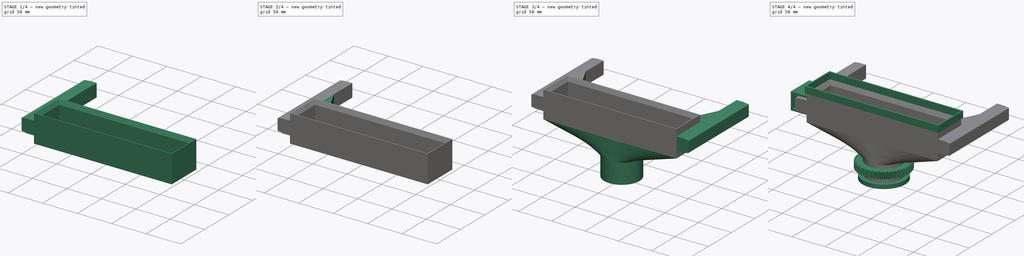
[diagram: build sequence overview — one tinted view per stage of 4, left to right]
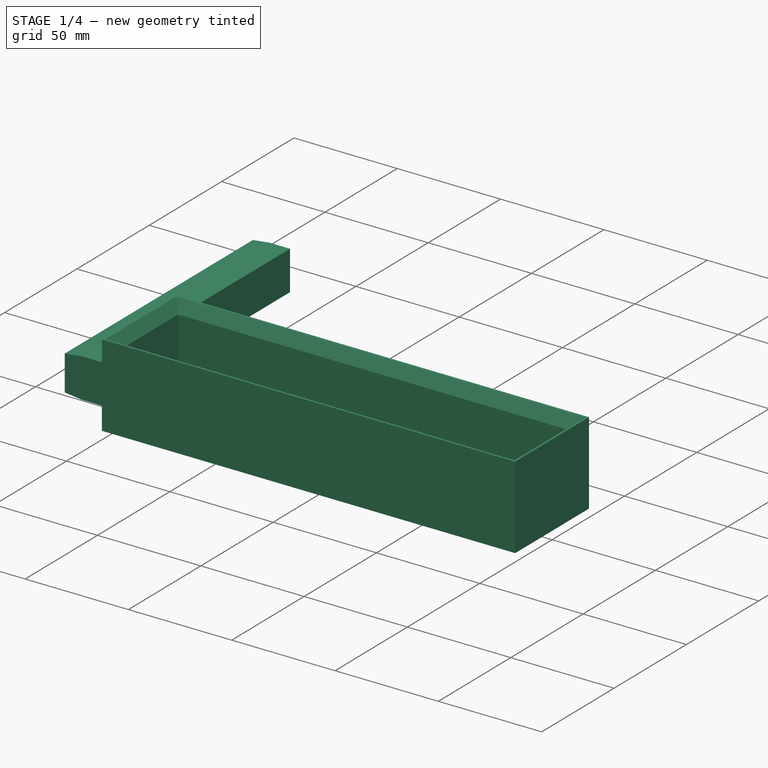
[diagram: stage 1 of 4 — iso view after this stage's code; geometry added in this stage tinted green]
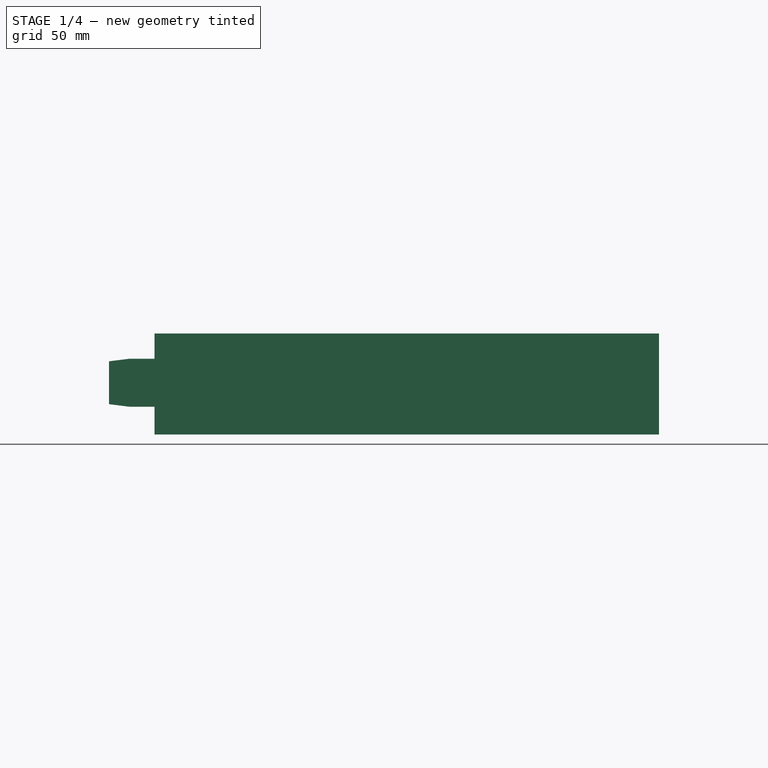
[diagram: stage 1 of 4 — front view after this stage's code; geometry added in this stage tinted green]
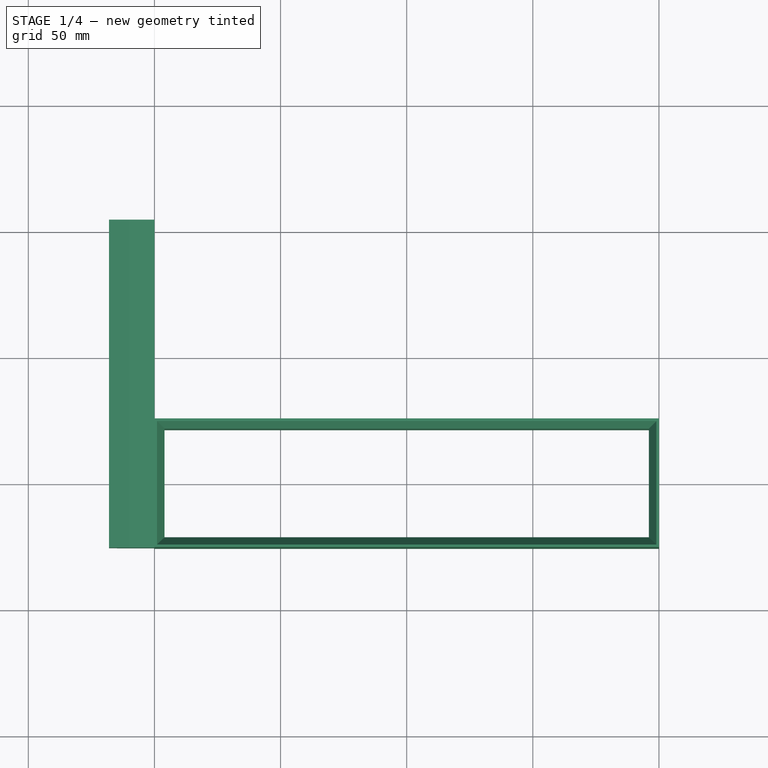
[diagram: stage 1 of 4 — top view after this stage's code; geometry added in this stage tinted green]
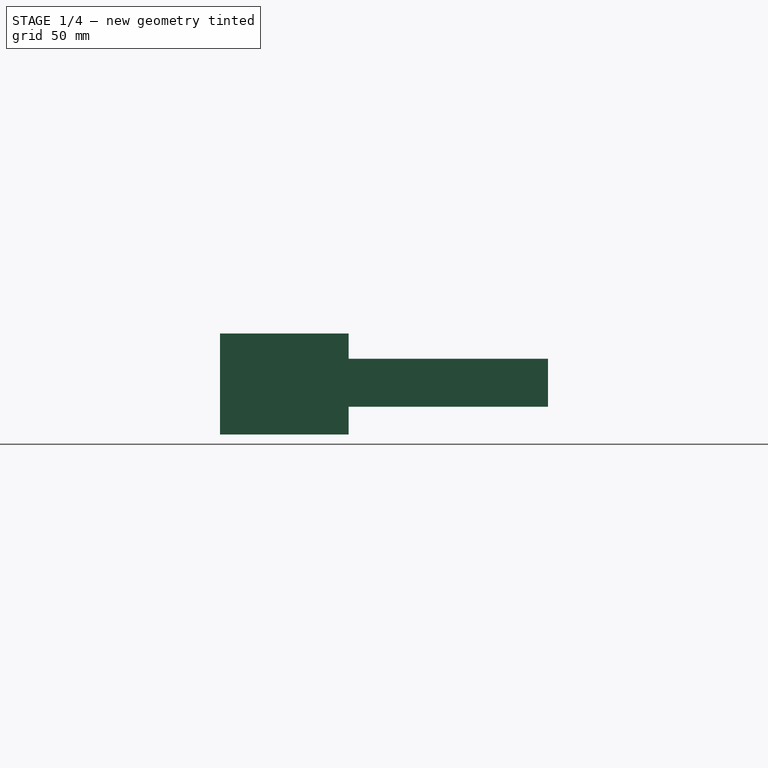
[diagram: stage 1 of 4 — right view after this stage's code; geometry added in this stage tinted green]
FCSTD DOCUMENT  (FreeCAD 0.20R29603 (Git))
Label: Pellet Sorter top joint
License: All rights reserved
LicenseURL: http://en.wikipedia.org/wiki/All_rights_reserved
objects: Sketcher::SketchObject×8, PartDesign::Pad×6, PartDesign::Chamfer×3, PartDesign::Body×3, PartDesign::Fillet×2, PartDesign::Mirrored×1, PartDesign::AdditiveLoft×1, Part::Part2DObjectPython×1, App::Part×1, PartDesign::Revolution×1
note: 39 computed .brp shape members not serialized (recipe doc carries the construction recipe); baked Part::Feature solids carry a one-line shape summary decoded from their .brp

FEATURE [Sketcher::SketchObject] Sketch  label="Sketch: Pelletizer exit"
  FullyConstrained = true
  MapMode = 5
  Support = -> [XY_Plane]
  sketch-geometry (5):
    g0: LineSegment StartX=-100 StartY=25 StartZ=0 EndX=-100 EndY=-25 EndZ=0
    g1: LineSegment StartX=-100 StartY=-25 StartZ=0 EndX=100 EndY=-25 EndZ=0
    g2: LineSegment StartX=100 StartY=-25 StartZ=0 EndX=100 EndY=25 EndZ=0
    g3: LineSegment StartX=100 StartY=25 StartZ=0 EndX=-100 EndY=25 EndZ=0
    g4: GeomPoint X=0 Y=0 Z=0
  constraints (12):
    c: Coincident(g0,g1)
    c: Coincident(g1,g2)
    c: Coincident(g2,g3)
    c: Coincident(g3,g0)
    c: Horizontal(g1)
    c: Horizontal(g3)
    c: Vertical(g0)
    c: Vertical(g2)
    c: Symmetric(g1,g0,g4)
    c: Coincident(g4,g-1)
    c: Distance(g2) = 50
    c: Distance(g3) = 200
FEATURE [Sketcher::SketchObject] Sketch001
  FullyConstrained = true
  MapMode = 5
  Support = -> [XY_Plane]
  sketch-geometry (13):
    g0: LineSegment StartX=-100 StartY=25.5 StartZ=0 EndX=-100 EndY=-25.5 EndZ=0
    g1: LineSegment StartX=-100 StartY=-25.5 StartZ=0 EndX=100 EndY=-25.5 EndZ=0
    g2: LineSegment StartX=100 StartY=-25.5 StartZ=0 EndX=100 EndY=25.5 EndZ=0
    g3: LineSegment StartX=100 StartY=25.5 StartZ=0 EndX=-100 EndY=25.5 EndZ=0
    g4: GeomPoint X=0 Y=0 Z=0
    g5: GeomPoint X=0 Y=0 Z=0
    g6: LineSegment StartX=-96 StartY=21.5 StartZ=0 EndX=-96 EndY=-21.5 EndZ=0
    g7: LineSegment StartX=-96 StartY=-21.5 StartZ=0 EndX=96 EndY=-21.5 EndZ=0
    g8: LineSegment StartX=96 StartY=-21.5 StartZ=0 EndX=96 EndY=21.5 EndZ=0
    g9: LineSegment StartX=96 StartY=21.5 StartZ=0 EndX=-96 EndY=21.5 EndZ=0
    g10: GeomPoint X=0 Y=0 Z=0
    g11: LineSegment StartX=-96 StartY=21.5 StartZ=0 EndX=-96 EndY=25.5 EndZ=0
    g12: LineSegment StartX=-96 StartY=21.5 StartZ=0 EndX=-100 EndY=21.5 EndZ=0
  constraints (31):
    c: Coincident(g0,g1)
    c: Coincident(g1,g2)
    c: Coincident(g2,g3)
    c: Coincident(g3,g0)
    c: Horizontal(g1)
    c: Horizontal(g3)
    c: Vertical(g0)
    c: Vertical(g2)
    c: Symmetric(g1,g0,g4)
    c: Coincident(g4,g-1)
    c: Distance(g3) = 200
    c: Distance(g2) = 51
    c: Coincident(g5,g4)
    c: Coincident(g6,g7)
    c: Coincident(g7,g8)
    c: Coincident(g8,g9)
    c: Coincident(g9,g6)
    c: Horizontal(g7)
    c: Horizontal(g9)
    c: Vertical(g6)
    c: Vertical(g8)
    c: Symmetric(g7,g6,g10)
    c: Coincident(g10,g4)
    c: Coincident(g11,g6)
    c: PointOnObject(g11,g3)
    c: Vertical(g11)
    c: Coincident(g12,g6)
    c: PointOnObject(g12,g0)
    c: Horizontal(g12)
    c: Equal(g11,g12)
    c: Distance(g11) = 4
FEATURE [PartDesign::Pad] Pad
  Direction = (0,0,1)
  Length = 40
  Length2 = 10
  Profile = -> Sketch001
  ReferenceAxis = -> Sketch001 [N_Axis]
  Reversed = true
  Type = 0
FEATURE [PartDesign::Chamfer] Chamfer
  Angle = 45
  Base = -> Pad [Edge23,Edge15,Edge18,Edge21]
  BaseFeature = -> Pad
  ChamferType = 1
  FlipDirection = false
  Size = 6
  Size2 = 3
  SupportTransform = false
  UseAllEdges = false
FEATURE [Sketcher::SketchObject] Sketch002
  FullyConstrained = true
  MapMode = 5
  Placement = pos=(0,-25.5,0) rot=(1,0,0;1.5708rad)
  Support = -> [Chamfer]
  sketch-geometry (5):
    g0: LineSegment StartX=-100 StartY=0 StartZ=0 EndX=-100 EndY=-29 EndZ=0
    g1: LineSegment StartX=-100 StartY=-29 StartZ=0 EndX=-100 EndY=-10 EndZ=0
    g2: LineSegment StartX=-100 StartY=-10 StartZ=0 EndX=-118 EndY=-10 EndZ=0
    g3: LineSegment StartX=-118 StartY=-10 StartZ=0 EndX=-118 EndY=-29 EndZ=0
    g4: LineSegment StartX=-118 StartY=-29 StartZ=0 EndX=-100 EndY=-29 EndZ=0
  constraints (15):
    c: PointOnObject(g0,g-1)
    c: Vertical(g0)
    c: DistanceX(g0,g-1) = 100
    c: Distance(g0) = 29
    c: Coincident(g1,g0)
    c: PointOnObject(g1,g0)
    c: Distance(g1) = 19
    c: Coincident(g2,g1)
    c: Horizontal(g2)
    c: Coincident(g3,g2)
    c: Vertical(g3)
    c: Coincident(g4,g3)
    c: Coincident(g4,g1)
    c: Horizontal(g4)
    c: Distance(g2) = 18
FEATURE [PartDesign::Pad] Pad001
  BaseFeature = -> Chamfer
  Direction = (0,-1,2e-16)
  Length = 130
  Length2 = 10
  Profile = -> Sketch002
  ReferenceAxis = -> Sketch002 [N_Axis]
  Reversed = true
  Type = 0
FEATURE [PartDesign::Chamfer] Chamfer001
  Angle = 45
  Base = -> Pad001 [Edge39,Edge47]
  BaseFeature = -> Pad001
  ChamferType = 1
  FlipDirection = false
  Size = 8
  Size2 = 1
  SupportTransform = false
  UseAllEdges = false
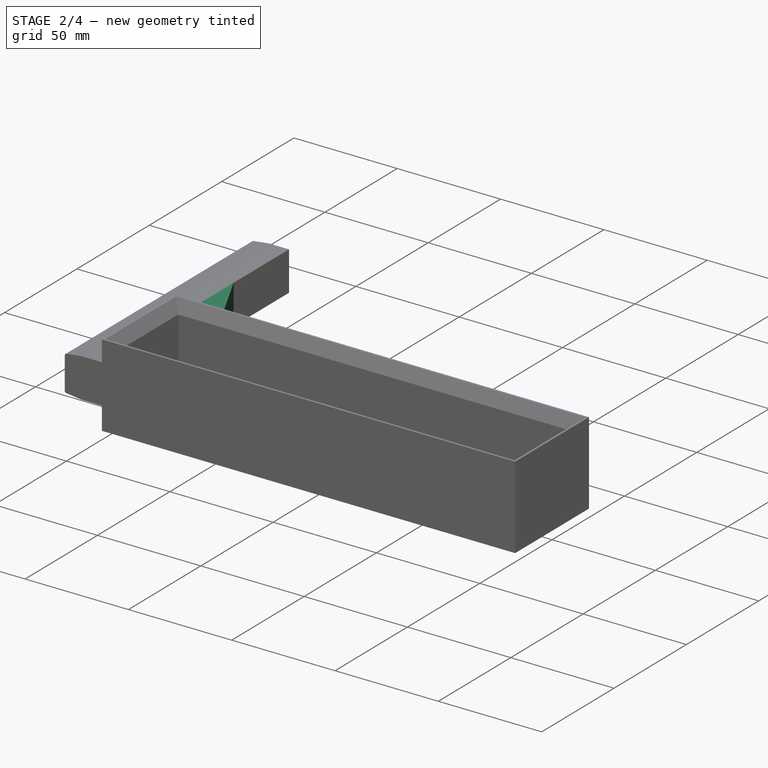
[diagram: stage 2 of 4 — iso view after this stage's code; geometry added in this stage tinted green]
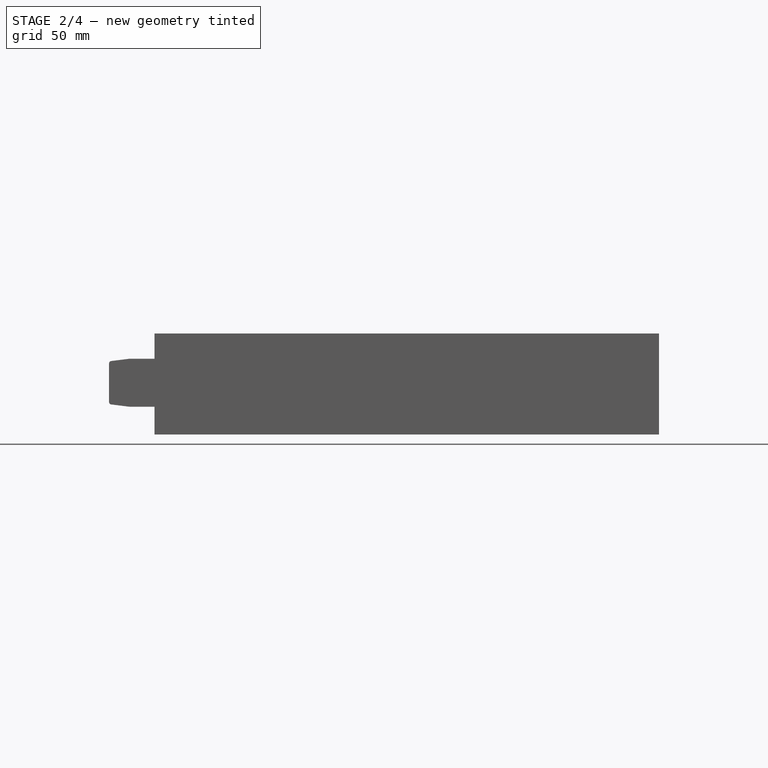
[diagram: stage 2 of 4 — front view after this stage's code; geometry added in this stage tinted green]
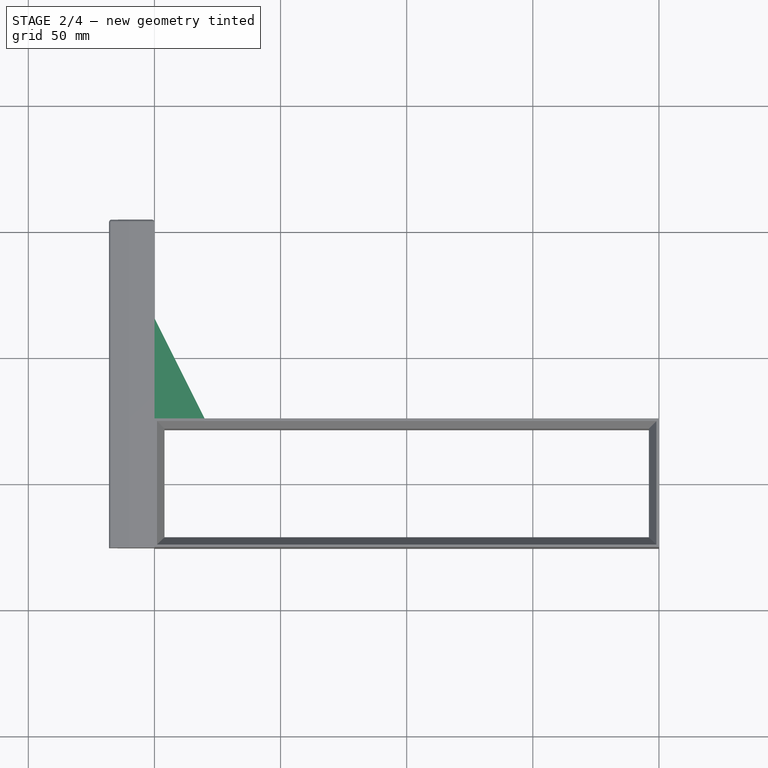
[diagram: stage 2 of 4 — top view after this stage's code; geometry added in this stage tinted green]
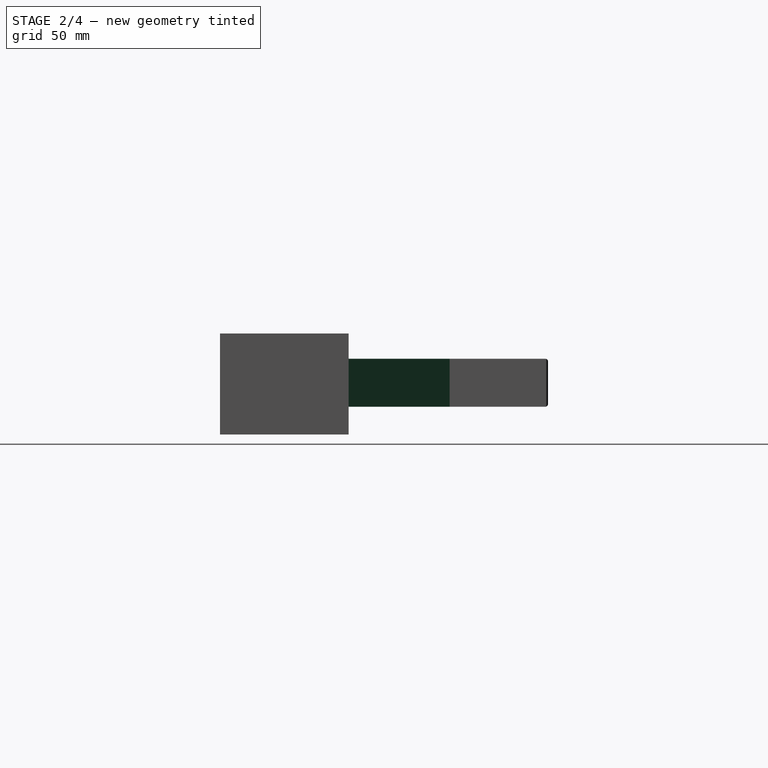
[diagram: stage 2 of 4 — right view after this stage's code; geometry added in this stage tinted green]
FEATURE [PartDesign::Fillet] Fillet
  Base = -> Chamfer001 [Edge11,Edge24]
  BaseFeature = -> Chamfer001
  Radius = 1
  SupportTransform = false
  UseAllEdges = false
FEATURE [PartDesign::Chamfer] Chamfer002
  Angle = 45
  Base = -> Fillet [Edge34]
  BaseFeature = -> Fillet
  ChamferType = 1
  FlipDirection = false
  Size = 40
  Size2 = 20
  SupportTransform = false
  UseAllEdges = false
FEATURE [PartDesign::Fillet] Fillet001
  Base = -> Chamfer002 [Edge3,Edge9,Edge13,Edge14,Edge15,Edge16,Edge18,Edge17]
  BaseFeature = -> Chamfer002
  Radius = 1
  SupportTransform = false
  UseAllEdges = false
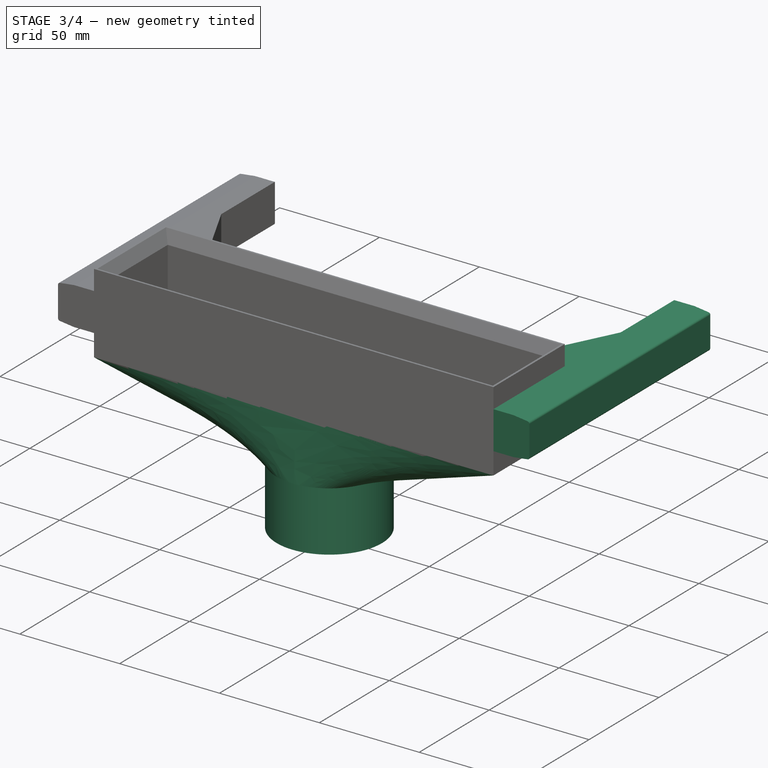
[diagram: stage 3 of 4 — iso view after this stage's code; geometry added in this stage tinted green]
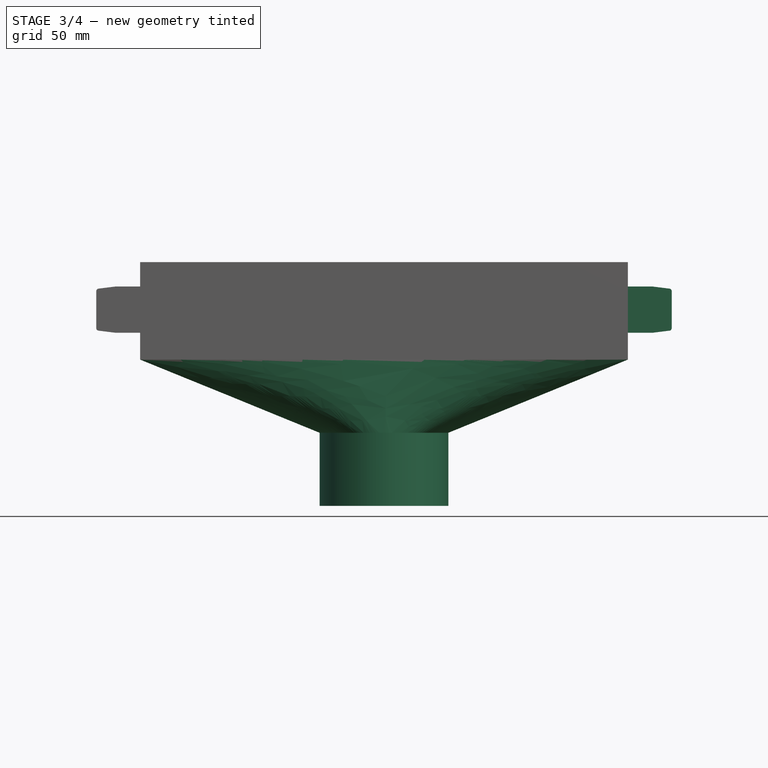
[diagram: stage 3 of 4 — front view after this stage's code; geometry added in this stage tinted green]
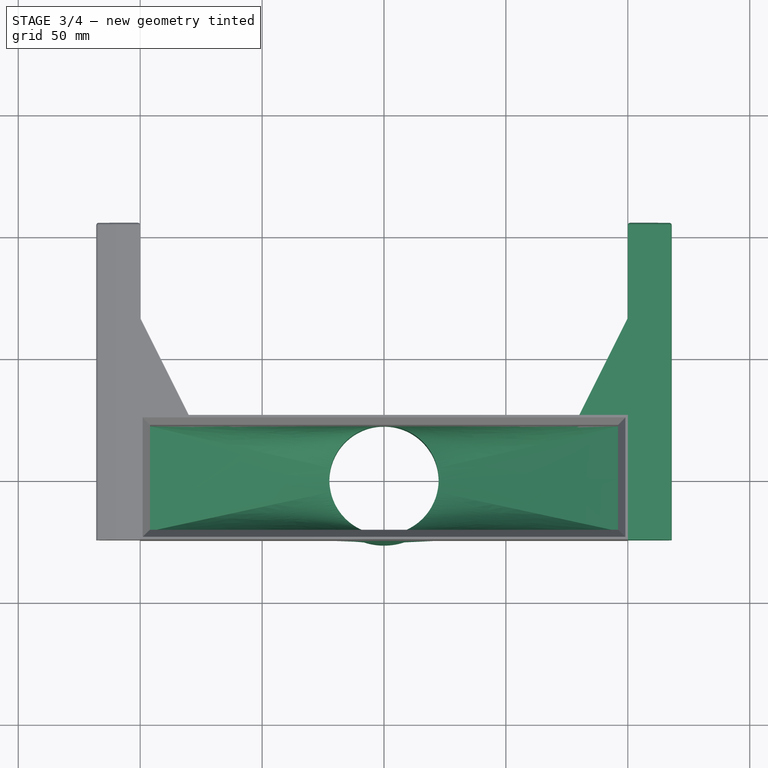
[diagram: stage 3 of 4 — top view after this stage's code; geometry added in this stage tinted green]
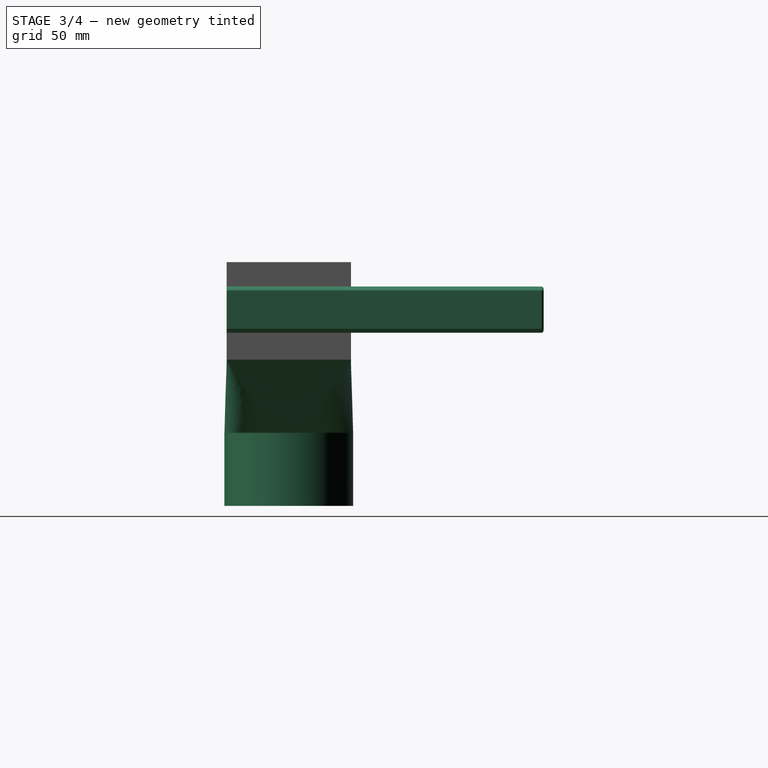
[diagram: stage 3 of 4 — right view after this stage's code; geometry added in this stage tinted green]
FEATURE [PartDesign::Mirrored] Mirrored
  BaseFeature = -> Fillet001
  MirrorPlane = -> Sketch002 [V_Axis]
  Originals = -> [Pad001,Chamfer001,Fillet,Chamfer002,Fillet001]
FEATURE [Sketcher::SketchObject] Sketch003
  AttachmentOffset = pos=(0,0,30) rot=(0,0,1;0rad)
  FullyConstrained = true
  MapMode = 5
  Placement = pos=(0,0,-70) rot=(1,0,0;3.14159rad)
  Support = -> [Mirrored]
  sketch-geometry (3):
    g0: Circle CenterX=-1e-16 CenterY=0 CenterZ=0 NormalX=0 NormalY=0 NormalZ=1 AngleXU=0 Radius=26.4
    g1: Circle CenterX=-1e-16 CenterY=0 CenterZ=0 NormalX=0 NormalY=0 NormalZ=1 AngleXU=0 Radius=22.4
    g2: LineSegment StartX=22.4 StartY=0 StartZ=0 EndX=26.4 EndY=0 EndZ=0
  constraints (8):
    c: Coincident(g0,g-1)
    c: Coincident(g1,g0)
    c: Diameter(g1) = 44.8
    c: PointOnObject(g2,g1)
    c: PointOnObject(g2,g0)
    c: Horizontal(g2)
    c: PointOnObject(g2,g-1)
    c: Distance(g2) = 4
FEATURE [PartDesign::AdditiveLoft] AdditiveLoft
  BaseFeature = -> Mirrored
  Closed = false
  Profile = -> Mirrored [Face15]
  Ruled = false
  Sections = -> [Sketch003]
FEATURE [PartDesign::Body] Body002
  Group = -> [Sketch007,Pad005]
  Origin = -> Origin003
  Tip = -> Pad005
FEATURE [App::Part] Part  label="Part: Pelletizer"
  Group = -> [Body001,Body002]
  Origin = -> Origin001
  Placement = pos=(0,0,1) rot=(0,0,1;0rad)
FEATURE [PartDesign::Pad] Pad007
  BaseFeature = -> AdditiveLoft
  Direction = (0,0,-1)
  Length = 30
  Length2 = 10
  Profile = -> AdditiveLoft [Face31]
  Type = 0
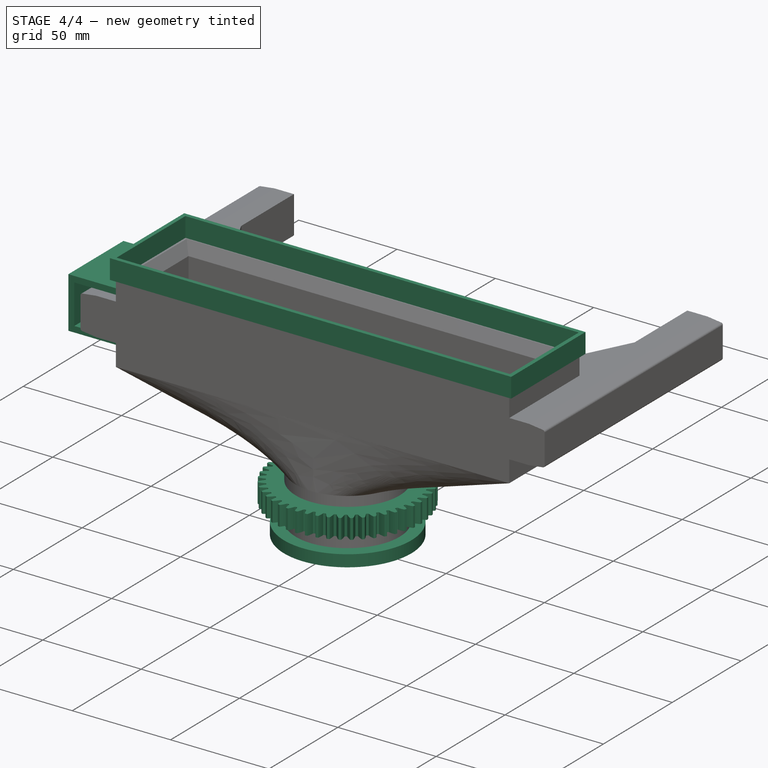
[diagram: stage 4 of 4 — iso view after this stage's code; geometry added in this stage tinted green]
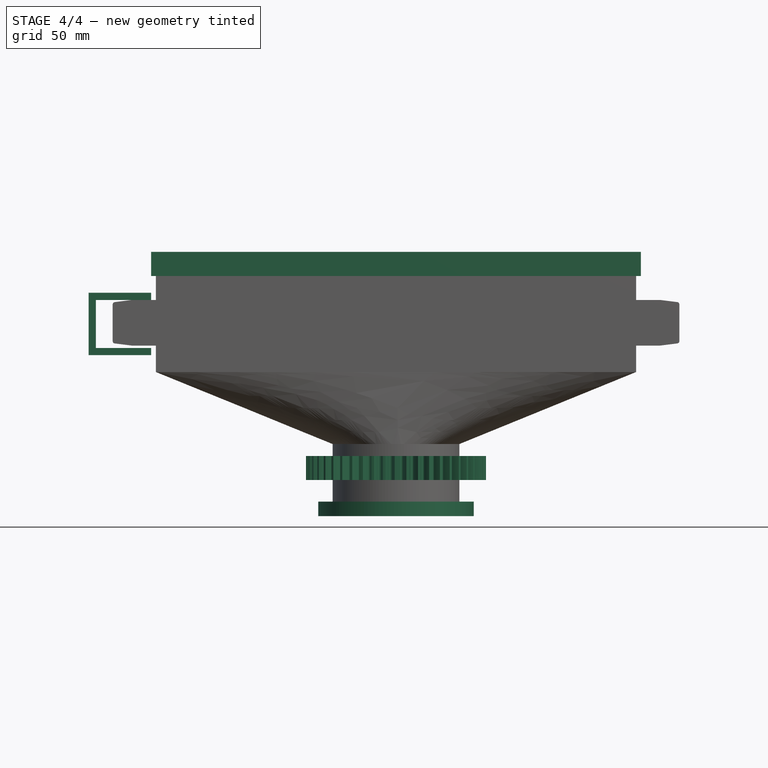
[diagram: stage 4 of 4 — front view after this stage's code; geometry added in this stage tinted green]
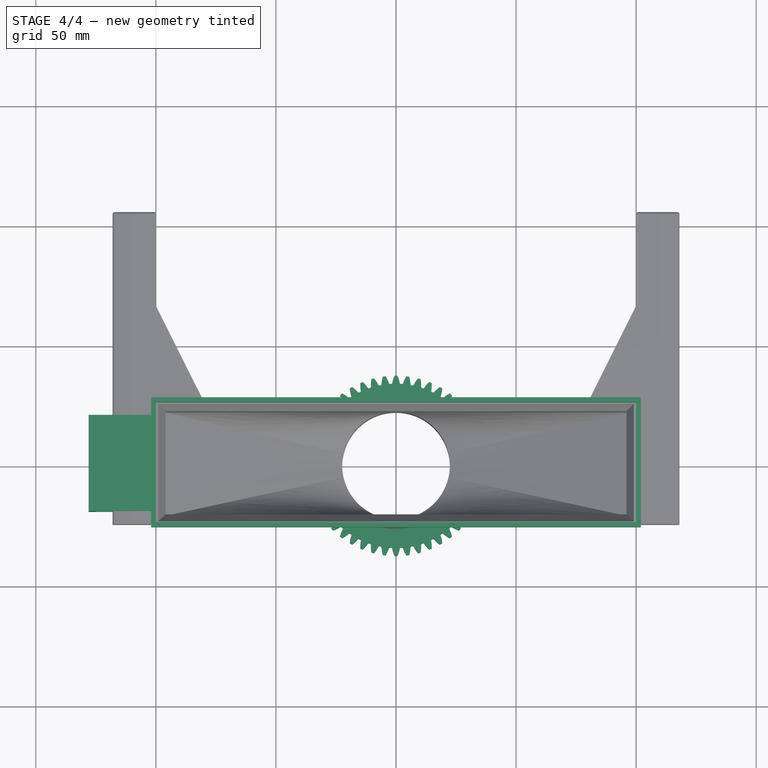
[diagram: stage 4 of 4 — top view after this stage's code; geometry added in this stage tinted green]
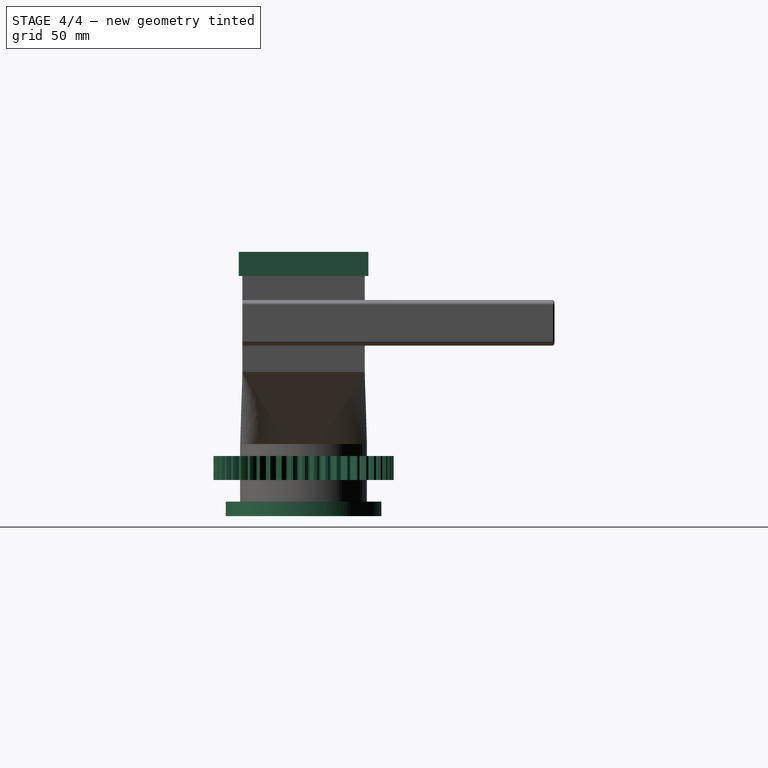
[diagram: stage 4 of 4 — right view after this stage's code; geometry added in this stage tinted green]
FEATURE [Sketcher::SketchObject] Sketch004
  FullyConstrained = true
  MapMode = 5
  Placement = pos=(0,0,0) rot=(1,0,0;1.5708rad)
  Support = -> [XZ_Plane]
  sketch-geometry (5):
    g0: LineSegment StartX=0 StartY=-100 StartZ=0 EndX=26.4 EndY=-100 EndZ=0
    g1: LineSegment StartX=26.4 StartY=-100 StartZ=0 EndX=32.4 EndY=-100 EndZ=0
    g2: LineSegment StartX=32.4 StartY=-100 StartZ=0 EndX=32.4 EndY=-94 EndZ=0
    g3: LineSegment StartX=32.4 StartY=-94 StartZ=0 EndX=26.4 EndY=-94 EndZ=0
    g4: LineSegment StartX=26.4 StartY=-94 StartZ=0 EndX=26.4 EndY=-100 EndZ=0
  constraints (15):
    c: PointOnObject(g0,g-2)
    c: Horizontal(g0)
    c: DistanceY(g0,g-1) = 100
    c: Distance(g0) = 26.4
    c: Coincident(g1,g0)
    c: Horizontal(g1)
    c: Coincident(g2,g1)
    c: Vertical(g2)
    c: Coincident(g3,g2)
    c: Horizontal(g3)
    c: Coincident(g4,g3)
    c: Coincident(g4,g1)
    c: Vertical(g4)
    c: Equal(g3,g2)
    c: Distance(g2) = 6
FEATURE [Part::Part2DObjectPython] InvoluteGear  # Draft 2D object (typed FeaturePython)
  ExternalGear = true
  HighPrecision = true
  Modules = 1.5
  NumberOfTeeth = 48
  PressureAngle = 20
FEATURE [Sketcher::SketchObject] Sketch006
  FullyConstrained = true
  MapMode = 5
  Support = -> [XY_Plane002]
  sketch-geometry (12):
    g0: LineSegment StartX=-100 StartY=25 StartZ=0 EndX=-100 EndY=-25 EndZ=0
    g1: LineSegment StartX=-100 StartY=-25 StartZ=0 EndX=100 EndY=-25 EndZ=0
    g2: LineSegment StartX=100 StartY=-25 StartZ=0 EndX=100 EndY=25 EndZ=0
    g3: LineSegment StartX=100 StartY=25 StartZ=0 EndX=-100 EndY=25 EndZ=0
    g4: GeomPoint X=0 Y=0 Z=0
    g5: LineSegment StartX=-102 StartY=27 StartZ=0 EndX=-102 EndY=-27 EndZ=0
    g6: LineSegment StartX=-102 StartY=-27 StartZ=0 EndX=102 EndY=-27 EndZ=0
    g7: LineSegment StartX=102 StartY=-27 StartZ=0 EndX=102 EndY=27 EndZ=0
    g8: LineSegment StartX=102 StartY=27 StartZ=0 EndX=-102 EndY=27 EndZ=0
    g9: GeomPoint X=0 Y=0 Z=0
    g10: LineSegment StartX=100 StartY=25 StartZ=0 EndX=100 EndY=27 EndZ=0
    g11: LineSegment StartX=100 StartY=25 StartZ=0 EndX=102 EndY=25 EndZ=0
  constraints (30):
    c: Coincident(g0,g1)
    c: Coincident(g1,g2)
    c: Coincident(g2,g3)
    c: Coincident(g3,g0)
    c: Horizontal(g1)
    c: Horizontal(g3)
    c: Vertical(g0)
    c: Vertical(g2)
    c: Symmetric(g1,g0,g4)
    c: Coincident(g4,g-1)
    c: Distance(g2) = 50
    c: Distance(g3) = 200
    c: Coincident(g5,g6)
    c: Coincident(g6,g7)
    c: Coincident(g7,g8)
    c: Coincident(g8,g5)
    c: Horizontal(g6)
    c: Horizontal(g8)
    c: Vertical(g5)
    c: Vertical(g7)
    c: Symmetric(g6,g5,g9)
    c: Coincident(g9,g4)
    c: Coincident(g10,g2)
    c: PointOnObject(g10,g8)
    c: Coincident(g11,g2)
    c: PointOnObject(g11,g7)
    c: Horizontal(g11)
    c: Vertical(g10)
    c: Distance(g11) = 2
    c: Equal(g11,g10)
FEATURE [PartDesign::Pad] Pad004
  Direction = (0,0,1)
  Length = 10
  Length2 = 10
  Profile = -> Sketch006
  ReferenceAxis = -> Sketch006 [N_Axis]
  Type = 0
FEATURE [PartDesign::Body] Body001
  Group = -> [Sketch006,Pad004]
  Origin = -> Origin002
  Tip = -> Pad004
FEATURE [Sketcher::SketchObject] Sketch007
  FullyConstrained = true
  MapMode = 5
  Placement = pos=(0,0,0) rot=(1,0,0;1.5708rad)
  Support = -> [XZ_Plane003]
  sketch-geometry (12):
    g0: LineSegment StartX=-102 StartY=0 StartZ=0 EndX=-102 EndY=-30 EndZ=0
    g1: LineSegment StartX=-102 StartY=-30 StartZ=0 EndX=-125 EndY=-30 EndZ=0
    g2: LineSegment StartX=-125 StartY=-30 StartZ=0 EndX=-125 EndY=-10 EndZ=0
    g3: LineSegment StartX=-125 StartY=-10 StartZ=0 EndX=-102 EndY=-10 EndZ=0
    g4: LineSegment StartX=-102 StartY=-10 StartZ=0 EndX=-102 EndY=-7 EndZ=0
    g5: LineSegment StartX=-102 StartY=-7 StartZ=0 EndX=-128 EndY=-7 EndZ=0
    g6: LineSegment StartX=-128 StartY=-7 StartZ=0 EndX=-128 EndY=-33 EndZ=0
    g7: LineSegment StartX=-128 StartY=-33 StartZ=0 EndX=-102 EndY=-33 EndZ=0
    g8: LineSegment StartX=-102 StartY=-33 StartZ=0 EndX=-102 EndY=-30 EndZ=0
    g9: LineSegment StartX=-125 StartY=-10 StartZ=0 EndX=-125 EndY=-7 EndZ=0
    g10: LineSegment StartX=-125 StartY=-10 StartZ=0 EndX=-128 EndY=-10 EndZ=0
    g11: LineSegment StartX=-125 StartY=-30 StartZ=0 EndX=-125 EndY=-33 EndZ=0
  constraints (36):
    c: PointOnObject(g0,g-1)
    c: Vertical(g0)
    c: DistanceX(g0,g-1) = 102
    c: Distance(g0) = 30
    c: Horizontal(g1)
    c: Distance(g1) = 23
    c: Coincident(g2,g1)
    c: Vertical(g2)
    c: Coincident(g3,g2)
    c: PointOnObject(g3,g0)
    c: Horizontal(g3)
    c: Coincident(g1,g0)
    c: Distance(g2) = 20
    c: Coincident(g4,g3)
    c: PointOnObject(g4,g0)
    c: Coincident(g5,g4)
    c: Horizontal(g5)
    c: Coincident(g6,g5)
    c: Vertical(g6)
    c: Coincident(g7,g6)
    c: Horizontal(g7)
    c: Coincident(g8,g7)
    c: Coincident(g8,g1)
    c: Vertical(g8)
    c: Coincident(g9,g2)
    c: PointOnObject(g9,g5)
    c: Coincident(g10,g2)
    c: PointOnObject(g10,g6)
    c: Horizontal(g10)
    c: Coincident(g11,g1)
    c: PointOnObject(g11,g7)
    c: Vertical(g11)
    c: Vertical(g9)
    c: Equal(g9,g10)
    c: Equal(g9,g11)
    c: Distance(g9) = 3
FEATURE [PartDesign::Pad] Pad005
  Direction = (0,-1,2e-16)
  Length = 40
  Length2 = 10
  Midplane = true
  Placement = pos=(0,0,0) rot=(1,0,0;1.5708rad)
  Profile = -> Sketch007
  ReferenceAxis = -> Sketch007 [N_Axis]
  Type = 0
FEATURE [PartDesign::Revolution] Revolution
  Angle = 360
  Axis = (0,2e-16,1)
  Base = (0,0,0)
  BaseFeature = -> Pad007
  Profile = -> Sketch004
  ReferenceAxis = -> Sketch004 [V_Axis]
  Reversed = true
FEATURE [Sketcher::SketchObject] Sketch008
  AttachmentOffset = pos=(0,0,-20) rot=(0,0,1;0rad)
  FullyConstrained = false
  MapMode = 11
  Placement = pos=(0,-1.78e-14,-80) rot=(0.707107,-0.707107,0;3.14159rad)
  Support = -> [Revolution]
  sketch-geometry (385):
    g0: BSplineCurve PolesCount=4 KnotsCount=2 Degree=3 IsPeriodic=0
    g1: BSplineCurve PolesCount=4 KnotsCount=2 Degree=3 IsPeriodic=0
    g2: ArcOfCircle CenterX=-0.00055013 CenterY=0 CenterZ=0 NormalX=0 NormalY=0 NormalZ=1 AngleXU=3.12614 Radius=37.5 StartAngle=0 EndAngle=0.0309054
    g3: BSplineCurve PolesCount=4 KnotsCount=2 Degree=3 IsPeriodic=0
    g4: BSplineCurve PolesCount=4 KnotsCount=2 Degree=3 IsPeriodic=0
    g5: ArcOfCircle CenterX=-34.6235 CenterY=-2.09232 CenterZ=0 NormalX=0 NormalY=0 NormalZ=1 AngleXU=1.28526 Radius=0.5625 StartAngle=5.00512 EndAngle=6.28319
    g6: ArcOfCircle CenterX=2.68773e-10 CenterY=1.836e-11 CenterZ=0 NormalX=0 NormalY=0 NormalZ=1 AngleXU=-3.08036 Radius=34.125 StartAngle=0 EndAngle=0.00843337
    g7: ArcOfCircle CenterX=-34.6004 CenterY=-2.44486 CenterZ=0 NormalX=0 NormalY=0 NormalZ=1 AngleXU=0.123708 Radius=0.5625 StartAngle=5.0052 EndAngle=6.28319
    g8: BSplineCurve PolesCount=4 KnotsCount=2 Degree=3 IsPeriodic=0
    g9: BSplineCurve PolesCount=4 KnotsCount=2 Degree=3 IsPeriodic=0
    g10: ArcOfCircle CenterX=-0.000545423 CenterY=-7.18064e-05 CenterZ=0 NormalX=0 NormalY=0 NormalZ=1 AngleXU=-3.02615 Radius=37.5 StartAngle=0 EndAngle=0.0309054
    g11: BSplineCurve PolesCount=4 KnotsCount=2 Degree=3 IsPeriodic=0
    g12: BSplineCurve PolesCount=4 KnotsCount=2 Degree=3 IsPeriodic=0
    g13: ArcOfCircle CenterX=-34.0542 CenterY=-6.5937 CenterZ=0 NormalX=0 NormalY=0 NormalZ=1 AngleXU=1.41616 Radius=0.5625 StartAngle=5.00512 EndAngle=6.28319
    g14: ArcOfCircle CenterX=-2.04675e-10 CenterY=-3.91447e-11 CenterZ=0 NormalX=0 NormalY=0 NormalZ=1 AngleXU=-2.94946 Radius=34.125 StartAngle=0 EndAngle=0.00843337
    g15: ArcOfCircle CenterX=-33.9853 CenterY=-6.9402 CenterZ=0 NormalX=0 NormalY=0 NormalZ=1 AngleXU=0.254608 Radius=0.5625 StartAngle=5.0052 EndAngle=6.28319
    g16: BSplineCurve PolesCount=4 KnotsCount=2 Degree=3 IsPeriodic=0
    g17: BSplineCurve PolesCount=4 KnotsCount=2 Degree=3 IsPeriodic=0
    g18: ArcOfCircle CenterX=-0.000531385 CenterY=-0.000142384 CenterZ=0 NormalX=0 NormalY=0 NormalZ=1 AngleXU=-2.89525 Radius=37.5 StartAngle=0 EndAngle=0.0309054
    g19: BSplineCurve PolesCount=4 KnotsCount=2 Degree=3 IsPeriodic=0
    g20: BSplineCurve PolesCount=4 KnotsCount=2 Degree=3 IsPeriodic=0
    g21: ArcOfCircle CenterX=-32.9022 CenterY=-10.9823 CenterZ=0 NormalX=0 NormalY=0 NormalZ=1 AngleXU=1.54706 Radius=0.5625 StartAngle=5.00512 EndAngle=6.28319
    g22: ArcOfCircle CenterX=3.25322e-10 CenterY=1.1129e-10 CenterZ=0 NormalX=0 NormalY=0 NormalZ=1 AngleXU=-2.81856 Radius=34.125 StartAngle=0 EndAngle=0.00843337
    g23: ArcOfCircle CenterX=-32.7887 CenterY=-11.3168 CenterZ=0 NormalX=0 NormalY=0 NormalZ=1 AngleXU=0.385508 Radius=0.5625 StartAngle=5.0052 EndAngle=6.28319
    g24: BSplineCurve PolesCount=4 KnotsCount=2 Degree=3 IsPeriodic=0
    g25: BSplineCurve PolesCount=4 KnotsCount=2 Degree=3 IsPeriodic=0
    g26: ArcOfCircle CenterX=-0.000508254 CenterY=-0.000210526 CenterZ=0 NormalX=0 NormalY=0 NormalZ=1 AngleXU=-2.76435 Radius=37.5 StartAngle=0 EndAngle=0.0309054
    g27: BSplineCurve PolesCount=4 KnotsCount=2 Degree=3 IsPeriodic=0
    g28: BSplineCurve PolesCount=4 KnotsCount=2 Degree=3 IsPeriodic=0
    g29: ArcOfCircle CenterX=-31.1873 CenterY=-15.1829 CenterZ=0 NormalX=0 NormalY=0 NormalZ=1 AngleXU=1.67796 Radius=0.5625 StartAngle=5.00512 EndAngle=6.28319
    g30: ArcOfCircle CenterX=8.864e-12 CenterY=5.0084e-12 CenterZ=0 NormalX=0 NormalY=0 NormalZ=1 AngleXU=-2.68766 Radius=34.125 StartAngle=0 EndAngle=0.00843337
    g31: ArcOfCircle CenterX=-31.031 CenterY=-15.4998 CenterZ=0 NormalX=0 NormalY=0 NormalZ=1 AngleXU=0.516407 Radius=0.5625 StartAngle=5.0052 EndAngle=6.28319
    g32: BSplineCurve PolesCount=4 KnotsCount=2 Degree=3 IsPeriodic=0
    g33: BSplineCurve PolesCount=4 KnotsCount=2 Degree=3 IsPeriodic=0
    g34: ArcOfCircle CenterX=-0.000476426 CenterY=-0.000275065 CenterZ=0 NormalX=0 NormalY=0 NormalZ=1 AngleXU=-2.63345 Radius=37.5 StartAngle=0 EndAngle=0.0309054
    g35: BSplineCurve PolesCount=4 KnotsCount=2 Degree=3 IsPeriodic=0
    g36: BSplineCurve PolesCount=4 KnotsCount=2 Degree=3 IsPeriodic=0
    g37: ArcOfCircle CenterX=-28.9387 CenterY=-19.1238 CenterZ=0 NormalX=0 NormalY=0 NormalZ=1 AngleXU=1.80886 Radius=0.5625 StartAngle=5.00512 EndAngle=6.28319
    g38: ArcOfCircle CenterX=1.03163e-09 CenterY=6.8988e-10 CenterZ=0 NormalX=0 NormalY=0 NormalZ=1 AngleXU=-2.55676 Radius=34.125 StartAngle=0 EndAngle=0.00843337
    g39: ArcOfCircle CenterX=-28.7424 CenterY=-19.4175 CenterZ=0 NormalX=0 NormalY=0 NormalZ=1 AngleXU=0.647307 Radius=0.5625 StartAngle=5.0052 EndAngle=6.28319
    g40: BSplineCurve PolesCount=4 KnotsCount=2 Degree=3 IsPeriodic=0
    g41: BSplineCurve PolesCount=4 KnotsCount=2 Degree=3 IsPeriodic=0
    g42: ArcOfCircle CenterX=-0.000436447 CenterY=-0.000334898 CenterZ=0 NormalX=0 NormalY=0 NormalZ=1 AngleXU=-2.50255 Radius=37.5 StartAngle=0 EndAngle=0.0309054
    g43: BSplineCurve PolesCount=4 KnotsCount=2 Degree=3 IsPeriodic=0
    g44: BSplineCurve PolesCount=4 KnotsCount=2 Degree=3 IsPeriodic=0
    g45: ArcOfCircle CenterX=-26.195 CenterY=-22.7374 CenterZ=0 NormalX=0 NormalY=0 NormalZ=1 AngleXU=1.93976 Radius=0.5625 StartAngle=5.00512 EndAngle=6.28319
    g46: ArcOfCircle CenterX=-2.95604e-11 CenterY=-2.54623e-11 CenterZ=0 NormalX=0 NormalY=0 NormalZ=1 AngleXU=-2.42586 Radius=34.125 StartAngle=0 EndAngle=0.00843337
    g47: ArcOfCircle CenterX=-25.962 CenterY=-23.003 CenterZ=0 NormalX=0 NormalY=0 NormalZ=1 AngleXU=0.778207 Radius=0.5625 StartAngle=5.0052 EndAngle=6.28319
    g48: BSplineCurve PolesCount=4 KnotsCount=2 Degree=3 IsPeriodic=0
    g49: BSplineCurve PolesCount=4 KnotsCount=2 Degree=3 IsPeriodic=0
    g50: ArcOfCircle CenterX=-0.000389001 CenterY=-0.000389001 CenterZ=0 NormalX=0 NormalY=0 NormalZ=1 AngleXU=-2.37165 Radius=37.5 StartAngle=0 EndAngle=0.0309054
    g51: BSplineCurve PolesCount=4 KnotsCount=2 Degree=3 IsPeriodic=0
    g52: BSplineCurve PolesCount=4 KnotsCount=2 Degree=3 IsPeriodic=0
    g53: ArcOfCircle CenterX=-23.003 CenterY=-25.962 CenterZ=0 NormalX=0 NormalY=0 NormalZ=1 AngleXU=2.07066 Radius=0.5625 StartAngle=5.00512 EndAngle=6.28319
    g54: ArcOfCircle CenterX=3.53197e-10 CenterY=4.04512e-10 CenterZ=0 NormalX=0 NormalY=0 NormalZ=1 AngleXU=-2.29496 Radius=34.125 StartAngle=0 EndAngle=0.00843337
    g55: ArcOfCircle CenterX=-22.7374 CenterY=-26.195 CenterZ=0 NormalX=0 NormalY=0 NormalZ=1 AngleXU=0.909106 Radius=0.5625 StartAngle=5.0052 EndAngle=6.28319
    g56: BSplineCurve PolesCount=4 KnotsCount=2 Degree=3 IsPeriodic=0
    g57: BSplineCurve PolesCount=4 KnotsCount=2 Degree=3 IsPeriodic=0
    g58: ArcOfCircle CenterX=-0.000334898 CenterY=-0.000436447 CenterZ=0 NormalX=0 NormalY=0 NormalZ=1 AngleXU=-2.24075 Radius=37.5 StartAngle=0 EndAngle=0.0309054
    g59: BSplineCurve PolesCount=4 KnotsCount=2 Degree=3 IsPeriodic=0
    g60: BSplineCurve PolesCount=4 KnotsCount=2 Degree=3 IsPeriodic=0
    g61: ArcOfCircle CenterX=-19.4175 CenterY=-28.7424 CenterZ=0 NormalX=0 NormalY=0 NormalZ=1 AngleXU=2.20156 Radius=0.5625 StartAngle=5.00512 EndAngle=6.28319
    g62: ArcOfCircle CenterX=1.85794e-10 CenterY=2.79529e-10 CenterZ=0 NormalX=0 NormalY=0 NormalZ=1 AngleXU=-2.16406 Radius=34.125 StartAngle=0 EndAngle=0.00843337
    g63: ArcOfCircle CenterX=-19.1238 CenterY=-28.9387 CenterZ=0 NormalX=0 NormalY=0 NormalZ=1 AngleXU=1.04001 Radius=0.5625 StartAngle=5.0052 EndAngle=6.28319
    g64: BSplineCurve PolesCount=4 KnotsCount=2 Degree=3 IsPeriodic=0
    g65: BSplineCurve PolesCount=4 KnotsCount=2 Degree=3 IsPeriodic=0
    g66: ArcOfCircle CenterX=-0.000275065 CenterY=-0.000476426 CenterZ=0 NormalX=0 NormalY=0 NormalZ=1 AngleXU=-2.10985 Radius=37.5 StartAngle=0 EndAngle=0.0309054
    g67: BSplineCurve PolesCount=4 KnotsCount=2 Degree=3 IsPeriodic=0
    g68: BSplineCurve PolesCount=4 KnotsCount=2 Degree=3 IsPeriodic=0
    g69: ArcOfCircle CenterX=-15.4998 CenterY=-31.031 CenterZ=0 NormalX=0 NormalY=0 NormalZ=1 AngleXU=2.33246 Radius=0.5625 StartAngle=5.00512 EndAngle=6.28319
    g70: ArcOfCircle CenterX=3.91406e-10 CenterY=7.94751e-10 CenterZ=0 NormalX=0 NormalY=0 NormalZ=1 AngleXU=-2.03316 Radius=34.125 StartAngle=0 EndAngle=0.00843337
    g71: ArcOfCircle CenterX=-15.1829 CenterY=-31.1873 CenterZ=0 NormalX=0 NormalY=0 NormalZ=1 AngleXU=1.17091 Radius=0.5625 StartAngle=5.0052 EndAngle=6.28319
    g72: BSplineCurve PolesCount=4 KnotsCount=2 Degree=3 IsPeriodic=0
    g73: BSplineCurve PolesCount=4 KnotsCount=2 Degree=3 IsPeriodic=0
    g74: ArcOfCircle CenterX=-0.000210526 CenterY=-0.000508254 CenterZ=0 NormalX=0 NormalY=0 NormalZ=1 AngleXU=-1.97895 Radius=37.5 StartAngle=0 EndAngle=0.0309054
    g75: BSplineCurve PolesCount=4 KnotsCount=2 Degree=3 IsPeriodic=0
    g76: BSplineCurve PolesCount=4 KnotsCount=2 Degree=3 IsPeriodic=0
    g77: ArcOfCircle CenterX=-11.3168 CenterY=-32.7887 CenterZ=0 NormalX=0 NormalY=0 NormalZ=1 AngleXU=2.46336 Radius=0.5625 StartAngle=5.00512 EndAngle=6.28319
    g78: ArcOfCircle CenterX=-4.31839e-10 CenterY=-1.27155e-09 CenterZ=0 NormalX=0 NormalY=0 NormalZ=1 AngleXU=-1.90226 Radius=34.125 StartAngle=0 EndAngle=0.00843337
    g79: ArcOfCircle CenterX=-10.9823 CenterY=-32.9022 CenterZ=0 NormalX=0 NormalY=0 NormalZ=1 AngleXU=1.30181 Radius=0.5625 StartAngle=5.0052 EndAngle=6.28319
    g80: BSplineCurve PolesCount=4 KnotsCount=2 Degree=3 IsPeriodic=0
    g81: BSplineCurve PolesCount=4 KnotsCount=2 Degree=3 IsPeriodic=0
    g82: ArcOfCircle CenterX=-0.000142384 CenterY=-0.000531385 CenterZ=0 NormalX=0 NormalY=0 NormalZ=1 AngleXU=-1.84805 Radius=37.5 StartAngle=0 EndAngle=0.0309054
    g83: BSplineCurve PolesCount=4 KnotsCount=2 Degree=3 IsPeriodic=0
    g84: BSplineCurve PolesCount=4 KnotsCount=2 Degree=3 IsPeriodic=0
    g85: ArcOfCircle CenterX=-6.9402 CenterY=-33.9853 CenterZ=0 NormalX=0 NormalY=0 NormalZ=1 AngleXU=2.59426 Radius=0.5625 StartAngle=5.00512 EndAngle=6.28319
    g86: ArcOfCircle CenterX=1.27546e-10 CenterY=6.46505e-10 CenterZ=0 NormalX=0 NormalY=0 NormalZ=1 AngleXU=-1.77136 Radius=34.125 StartAngle=0 EndAngle=0.00843337
    g87: ArcOfCircle CenterX=-6.5937 CenterY=-34.0542 CenterZ=0 NormalX=0 NormalY=0 NormalZ=1 AngleXU=1.43271 Radius=0.5625 StartAngle=5.0052 EndAngle=6.28319
    g88: BSplineCurve PolesCount=4 KnotsCount=2 Degree=3 IsPeriodic=0
    g89: BSplineCurve PolesCount=4 KnotsCount=2 Degree=3 IsPeriodic=0
    g90: ArcOfCircle CenterX=-7.18064e-05 CenterY=-0.000545423 CenterZ=0 NormalX=0 NormalY=0 NormalZ=1 AngleXU=-1.71715 Radius=37.5 StartAngle=0 EndAngle=0.0309054
    g91: BSplineCurve PolesCount=4 KnotsCount=2 Degree=3 IsPeriodic=0
    g92: BSplineCurve PolesCount=4 KnotsCount=2 Degree=3 IsPeriodic=0
    g93: ArcOfCircle CenterX=-2.44485 CenterY=-34.6004 CenterZ=0 NormalX=0 NormalY=0 NormalZ=1 AngleXU=2.72516 Radius=0.5625 StartAngle=5.00512 EndAngle=6.28319
    g94: ArcOfCircle CenterX=1.60243e-11 CenterY=2.46239e-10 CenterZ=0 NormalX=0 NormalY=0 NormalZ=1 AngleXU=-1.64046 Radius=34.125 StartAngle=0 EndAngle=0.00843337
    g95: ArcOfCircle CenterX=-2.09232 CenterY=-34.6235 CenterZ=0 NormalX=0 NormalY=0 NormalZ=1 AngleXU=1.5636 Radius=0.5625 StartAngle=5.0052 EndAngle=6.28319
    g96: BSplineCurve PolesCount=4 KnotsCount=2 Degree=3 IsPeriodic=0
    g97: BSplineCurve PolesCount=4 KnotsCount=2 Degree=3 IsPeriodic=0
    g98: ArcOfCircle CenterX=-2.3e-15 CenterY=-0.00055013 CenterZ=0 NormalX=0 NormalY=0 NormalZ=1 AngleXU=-1.58625 Radius=37.5 StartAngle=0 EndAngle=0.0309054
    g99: BSplineCurve PolesCount=4 KnotsCount=2 Degree=3 IsPeriodic=0
    g100: BSplineCurve PolesCount=4 KnotsCount=2 Degree=3 IsPeriodic=0
    g101: ArcOfCircle CenterX=2.09232 CenterY=-34.6235 CenterZ=0 NormalX=0 NormalY=0 NormalZ=1 AngleXU=2.85606 Radius=0.5625 StartAngle=5.00512 EndAngle=6.28319
    g102: ArcOfCircle CenterX=-1.8145e-11 CenterY=2.65462e-10 CenterZ=0 NormalX=0 NormalY=0 NormalZ=1 AngleXU=-1.50956 Radius=34.125 StartAngle=0 EndAngle=0.00843337
    g103: ArcOfCircle CenterX=2.44486 CenterY=-34.6004 CenterZ=0 NormalX=0 NormalY=0 NormalZ=1 AngleXU=1.6945 Radius=0.5625 StartAngle=5.0052 EndAngle=6.28319
    g104: BSplineCurve PolesCount=4 KnotsCount=2 Degree=3 IsPeriodic=0
    g105: BSplineCurve PolesCount=4 KnotsCount=2 Degree=3 IsPeriodic=0
    g106: ArcOfCircle CenterX=7.18064e-05 CenterY=-0.000545423 CenterZ=0 NormalX=0 NormalY=0 NormalZ=1 AngleXU=-1.45535 Radius=37.5 StartAngle=0 EndAngle=0.0309054
    g107: BSplineCurve PolesCount=4 KnotsCount=2 Degree=3 IsPeriodic=0
    g108: BSplineCurve PolesCount=4 KnotsCount=2 Degree=3 IsPeriodic=0
    g109: ArcOfCircle CenterX=6.5937 CenterY=-34.0542 CenterZ=0 NormalX=0 NormalY=0 NormalZ=1 AngleXU=2.98696 Radius=0.5625 StartAngle=5.00512 EndAngle=6.28319
    g110: ArcOfCircle CenterX=-1.27237e-10 CenterY=6.31854e-10 CenterZ=0 NormalX=0 NormalY=0 NormalZ=1 AngleXU=-1.37866 Radius=34.125 StartAngle=0 EndAngle=0.00843337
    g111: ArcOfCircle CenterX=6.9402 CenterY=-33.9853 CenterZ=0 NormalX=0 NormalY=0 NormalZ=1 AngleXU=1.8254 Radius=0.5625 StartAngle=5.0052 EndAngle=6.28319
    g112: BSplineCurve PolesCount=4 KnotsCount=2 Degree=3 IsPeriodic=0
    g113: BSplineCurve PolesCount=4 KnotsCount=2 Degree=3 IsPeriodic=0
    g114: ArcOfCircle CenterX=0.000142384 CenterY=-0.000531385 CenterZ=0 NormalX=0 NormalY=0 NormalZ=1 AngleXU=-1.32445 Radius=37.5 StartAngle=0 EndAngle=0.0309054
    g115: BSplineCurve PolesCount=4 KnotsCount=2 Degree=3 IsPeriodic=0
    g116: BSplineCurve PolesCount=4 KnotsCount=2 Degree=3 IsPeriodic=0
    g117: ArcOfCircle CenterX=10.9823 CenterY=-32.9022 CenterZ=0 NormalX=0 NormalY=0 NormalZ=1 AngleXU=3.11785 Radius=0.5625 StartAngle=5.00512 EndAngle=6.28319
    g118: ArcOfCircle CenterX=-1.11293e-10 CenterY=3.25322e-10 CenterZ=0 NormalX=0 NormalY=0 NormalZ=1 AngleXU=-1.24776 Radius=34.125 StartAngle=0 EndAngle=0.00843337
    g119: ArcOfCircle CenterX=11.3168 CenterY=-32.7887 CenterZ=0 NormalX=0 NormalY=0 NormalZ=1 AngleXU=1.9563 Radius=0.5625 StartAngle=5.0052 EndAngle=6.28319
    g120: BSplineCurve PolesCount=4 KnotsCount=2 Degree=3 IsPeriodic=0
    g121: BSplineCurve PolesCount=4 KnotsCount=2 Degree=3 IsPeriodic=0
    g122: ArcOfCircle CenterX=0.000210526 CenterY=-0.000508254 CenterZ=0 NormalX=0 NormalY=0 NormalZ=1 AngleXU=-1.19355 Radius=37.5 StartAngle=0 EndAngle=0.0309054
    g123: BSplineCurve PolesCount=4 KnotsCount=2 Degree=3 IsPeriodic=0
    g124: BSplineCurve PolesCount=4 KnotsCount=2 Degree=3 IsPeriodic=0
    g125: ArcOfCircle CenterX=15.1829 CenterY=-31.1873 CenterZ=0 NormalX=0 NormalY=0 NormalZ=1 AngleXU=-3.03443 Radius=0.5625 StartAngle=5.00512 EndAngle=6.28319
    g126: ArcOfCircle CenterX=1.54728e-10 CenterY=-3.14866e-10 CenterZ=0 NormalX=0 NormalY=0 NormalZ=1 AngleXU=-1.11686 Radius=34.125 StartAngle=0 EndAngle=0.00843337
    g127: ArcOfCircle CenterX=15.4998 CenterY=-31.031 CenterZ=0 NormalX=0 NormalY=0 NormalZ=1 AngleXU=2.0872 Radius=0.5625 StartAngle=5.0052 EndAngle=6.28319
    g128: BSplineCurve PolesCount=4 KnotsCount=2 Degree=3 IsPeriodic=0
    g129: BSplineCurve PolesCount=4 KnotsCount=2 Degree=3 IsPeriodic=0
    g130: ArcOfCircle CenterX=0.000275065 CenterY=-0.000476426 CenterZ=0 NormalX=0 NormalY=0 NormalZ=1 AngleXU=-1.06265 Radius=37.5 StartAngle=0 EndAngle=0.0309054
    g131: BSplineCurve PolesCount=4 KnotsCount=2 Degree=3 IsPeriodic=0
    g132: BSplineCurve PolesCount=4 KnotsCount=2 Degree=3 IsPeriodic=0
    g133: ArcOfCircle CenterX=19.1238 CenterY=-28.9387 CenterZ=0 NormalX=0 NormalY=0 NormalZ=1 AngleXU=-2.90353 Radius=0.5625 StartAngle=5.00512 EndAngle=6.28319
    g134: ArcOfCircle CenterX=-6.90749e-10 CenterY=1.03292e-09 CenterZ=0 NormalX=0 NormalY=0 NormalZ=1 AngleXU=-0.985964 Radius=34.125 StartAngle=0 EndAngle=0.00843337
    g135: ArcOfCircle CenterX=19.4175 CenterY=-28.7424 CenterZ=0 NormalX=0 NormalY=0 NormalZ=1 AngleXU=2.2181 Radius=0.5625 StartAngle=5.0052 EndAngle=6.28319
    g136: BSplineCurve PolesCount=4 KnotsCount=2 Degree=3 IsPeriodic=0
    g137: BSplineCurve PolesCount=4 KnotsCount=2 Degree=3 IsPeriodic=0
    g138: ArcOfCircle CenterX=0.000334898 CenterY=-0.000436447 CenterZ=0 NormalX=0 NormalY=0 NormalZ=1 AngleXU=-0.931751 Radius=37.5 StartAngle=0 EndAngle=0.0309054
    g139: BSplineCurve PolesCount=4 KnotsCount=2 Degree=3 IsPeriodic=0
    g140: BSplineCurve PolesCount=4 KnotsCount=2 Degree=3 IsPeriodic=0
    g141: ArcOfCircle CenterX=22.7374 CenterY=-26.195 CenterZ=0 NormalX=0 NormalY=0 NormalZ=1 AngleXU=-2.77263 Radius=0.5625 StartAngle=5.00512 EndAngle=6.28319
    g142: ArcOfCircle CenterX=-1.67743e-10 CenterY=1.90312e-10 CenterZ=0 NormalX=0 NormalY=0 NormalZ=1 AngleXU=-0.855065 Radius=34.125 StartAngle=0 EndAngle=0.00843337
    g143: ArcOfCircle CenterX=23.003 CenterY=-25.962 CenterZ=0 NormalX=0 NormalY=0 NormalZ=1 AngleXU=2.349 Radius=0.5625 StartAngle=5.0052 EndAngle=6.28319
    g144: BSplineCurve PolesCount=4 KnotsCount=2 Degree=3 IsPeriodic=0
    g145: BSplineCurve PolesCount=4 KnotsCount=2 Degree=3 IsPeriodic=0
    g146: ArcOfCircle CenterX=0.000389001 CenterY=-0.000389001 CenterZ=0 NormalX=0 NormalY=0 NormalZ=1 AngleXU=-0.800851 Radius=37.5 StartAngle=0 EndAngle=0.0309054
    g147: BSplineCurve PolesCount=4 KnotsCount=2 Degree=3 IsPeriodic=0
    g148: BSplineCurve PolesCount=4 KnotsCount=2 Degree=3 IsPeriodic=0
    g149: ArcOfCircle CenterX=25.962 CenterY=-23.003 CenterZ=0 NormalX=0 NormalY=0 NormalZ=1 AngleXU=-2.64173 Radius=0.5625 StartAngle=5.00512 EndAngle=6.28319
    g150: ArcOfCircle CenterX=-1.05493e-09 CenterY=9.23169e-10 CenterZ=0 NormalX=0 NormalY=0 NormalZ=1 AngleXU=-0.724165 Radius=34.125 StartAngle=0 EndAngle=0.00843337
    g151: ArcOfCircle CenterX=26.195 CenterY=-22.7374 CenterZ=0 NormalX=0 NormalY=0 NormalZ=1 AngleXU=2.4799 Radius=0.5625 StartAngle=5.0052 EndAngle=6.28319
    g152: BSplineCurve PolesCount=4 KnotsCount=2 Degree=3 IsPeriodic=0
    g153: BSplineCurve PolesCount=4 KnotsCount=2 Degree=3 IsPeriodic=0
    g154: ArcOfCircle CenterX=0.000436447 CenterY=-0.000334898 CenterZ=0 NormalX=0 NormalY=0 NormalZ=1 AngleXU=-0.669951 Radius=37.5 StartAngle=0 EndAngle=0.0309054
    g155: BSplineCurve PolesCount=4 KnotsCount=2 Degree=3 IsPeriodic=0
    g156: BSplineCurve PolesCount=4 KnotsCount=2 Degree=3 IsPeriodic=0
    g157: ArcOfCircle CenterX=28.7424 CenterY=-19.4175 CenterZ=0 NormalX=0 NormalY=0 NormalZ=1 AngleXU=-2.51083 Radius=0.5625 StartAngle=5.00512 EndAngle=6.28319
    g158: ArcOfCircle CenterX=-5.54044e-10 CenterY=3.69205e-10 CenterZ=0 NormalX=0 NormalY=0 NormalZ=1 AngleXU=-0.593265 Radius=34.125 StartAngle=0 EndAngle=0.00843337
    g159: ArcOfCircle CenterX=28.9387 CenterY=-19.1238 CenterZ=0 NormalX=0 NormalY=0 NormalZ=1 AngleXU=2.6108 Radius=0.5625 StartAngle=5.0052 EndAngle=6.28319
    g160: BSplineCurve PolesCount=4 KnotsCount=2 Degree=3 IsPeriodic=0
    g161: BSplineCurve PolesCount=4 KnotsCount=2 Degree=3 IsPeriodic=0
    g162: ArcOfCircle CenterX=0.000476426 CenterY=-0.000275065 CenterZ=0 NormalX=0 NormalY=0 NormalZ=1 AngleXU=-0.539051 Radius=37.5 StartAngle=0 EndAngle=0.0309054
    g163: BSplineCurve PolesCount=4 KnotsCount=2 Degree=3 IsPeriodic=0
    g164: BSplineCurve PolesCount=4 KnotsCount=2 Degree=3 IsPeriodic=0
    g165: ArcOfCircle CenterX=31.031 CenterY=-15.4998 CenterZ=0 NormalX=0 NormalY=0 NormalZ=1 AngleXU=-2.37993 Radius=0.5625 StartAngle=5.00512 EndAngle=6.28319
    g166: ArcOfCircle CenterX=-7.94754e-10 CenterY=3.91399e-10 CenterZ=0 NormalX=0 NormalY=0 NormalZ=1 AngleXU=-0.462366 Radius=34.125 StartAngle=0 EndAngle=0.00843337
    g167: ArcOfCircle CenterX=31.1873 CenterY=-15.1829 CenterZ=0 NormalX=0 NormalY=0 NormalZ=1 AngleXU=2.7417 Radius=0.5625 StartAngle=5.0052 EndAngle=6.28319
    g168: BSplineCurve PolesCount=4 KnotsCount=2 Degree=3 IsPeriodic=0
    g169: BSplineCurve PolesCount=4 KnotsCount=2 Degree=3 IsPeriodic=0
    g170: ArcOfCircle CenterX=0.000508254 CenterY=-0.000210526 CenterZ=0 NormalX=0 NormalY=0 NormalZ=1 AngleXU=-0.408152 Radius=37.5 StartAngle=0 EndAngle=0.0309054
    g171: BSplineCurve PolesCount=4 KnotsCount=2 Degree=3 IsPeriodic=0
    g172: BSplineCurve PolesCount=4 KnotsCount=2 Degree=3 IsPeriodic=0
    g173: ArcOfCircle CenterX=32.7887 CenterY=-11.3168 CenterZ=0 NormalX=0 NormalY=0 NormalZ=1 AngleXU=-2.24903 Radius=0.5625 StartAngle=5.00512 EndAngle=6.28319
    g174: ArcOfCircle CenterX=-2.89013e-11 CenterY=9.603e-12 CenterZ=0 NormalX=0 NormalY=0 NormalZ=1 AngleXU=-0.331466 Radius=34.125 StartAngle=0 EndAngle=0.00843337
    g175: ArcOfCircle CenterX=32.9022 CenterY=-10.9823 CenterZ=0 NormalX=0 NormalY=0 NormalZ=1 AngleXU=2.8726 Radius=0.5625 StartAngle=5.0052 EndAngle=6.28319
    g176: BSplineCurve PolesCount=4 KnotsCount=2 Degree=3 IsPeriodic=0
    g177: BSplineCurve PolesCount=4 KnotsCount=2 Degree=3 IsPeriodic=0
    g178: ArcOfCircle CenterX=0.000531385 CenterY=-0.000142384 CenterZ=0 NormalX=0 NormalY=0 NormalZ=1 AngleXU=-0.277252 Radius=37.5 StartAngle=0 EndAngle=0.0309054
    g179: BSplineCurve PolesCount=4 KnotsCount=2 Degree=3 IsPeriodic=0
    g180: BSplineCurve PolesCount=4 KnotsCount=2 Degree=3 IsPeriodic=0
    g181: ArcOfCircle CenterX=33.9853 CenterY=-6.9402 CenterZ=0 NormalX=0 NormalY=0 NormalZ=1 AngleXU=-2.11813 Radius=0.5625 StartAngle=5.00512 EndAngle=6.28319
    g182: ArcOfCircle CenterX=-6.46505e-10 CenterY=1.27544e-10 CenterZ=0 NormalX=0 NormalY=0 NormalZ=1 AngleXU=-0.200566 Radius=34.125 StartAngle=0 EndAngle=0.00843337
    g183: ArcOfCircle CenterX=34.0542 CenterY=-6.5937 CenterZ=0 NormalX=0 NormalY=0 NormalZ=1 AngleXU=3.0035 Radius=0.5625 StartAngle=5.0052 EndAngle=6.28319
    g184: BSplineCurve PolesCount=4 KnotsCount=2 Degree=3 IsPeriodic=0
    g185: BSplineCurve PolesCount=4 KnotsCount=2 Degree=3 IsPeriodic=0
    g186: ArcOfCircle CenterX=0.000545423 CenterY=-7.18064e-05 CenterZ=0 NormalX=0 NormalY=0 NormalZ=1 AngleXU=-0.146352 Radius=37.5 StartAngle=0 EndAngle=0.0309054
    g187: BSplineCurve PolesCount=4 KnotsCount=2 Degree=3 IsPeriodic=0
    g188: BSplineCurve PolesCount=4 KnotsCount=2 Degree=3 IsPeriodic=0
    g189: ArcOfCircle CenterX=34.6004 CenterY=-2.44485 CenterZ=0 NormalX=0 NormalY=0 NormalZ=1 AngleXU=-1.98723 Radius=0.5625 StartAngle=5.00512 EndAngle=6.28319
    g190: ArcOfCircle CenterX=1.11145e-09 CenterY=-7.3815e-11 CenterZ=0 NormalX=0 NormalY=0 NormalZ=1 AngleXU=-0.0696665 Radius=34.125 StartAngle=0 EndAngle=0.00843337
    g191: ArcOfCircle CenterX=34.6235 CenterY=-2.09232 CenterZ=0 NormalX=0 NormalY=0 NormalZ=1 AngleXU=3.1344 Radius=0.5625 StartAngle=5.0052 EndAngle=6.28319
    g192: BSplineCurve PolesCount=4 KnotsCount=2 Degree=3 IsPeriodic=0
    g193: BSplineCurve PolesCount=4 KnotsCount=2 Degree=3 IsPeriodic=0
    g194: ArcOfCircle CenterX=0.00055013 CenterY=-4.6e-15 CenterZ=0 NormalX=0 NormalY=0 NormalZ=1 AngleXU=-0.0154527 Radius=37.5 StartAngle=0 EndAngle=0.0309054
    g195: BSplineCurve PolesCount=4 KnotsCount=2 Degree=3 IsPeriodic=0
    g196: BSplineCurve PolesCount=4 KnotsCount=2 Degree=3 IsPeriodic=0
    g197: ArcOfCircle CenterX=34.6235 CenterY=2.09232 CenterZ=0 NormalX=0 NormalY=0 NormalZ=1 AngleXU=-1.85633 Radius=0.5625 StartAngle=5.00512 EndAngle=6.28319
    g198: ArcOfCircle CenterX=-2.65462e-10 CenterY=-1.81468e-11 CenterZ=0 NormalX=0 NormalY=0 NormalZ=1 AngleXU=0.0612332 Radius=34.125 StartAngle=0 EndAngle=0.00843337
    g199: ArcOfCircle CenterX=34.6004 CenterY=2.44486 CenterZ=0 NormalX=0 NormalY=0 NormalZ=1 AngleXU=-3.01788 Radius=0.5625 StartAngle=5.0052 EndAngle=6.28319
    g200: BSplineCurve PolesCount=4 KnotsCount=2 Degree=3 IsPeriodic=0
    g201: BSplineCurve PolesCount=4 KnotsCount=2 Degree=3 IsPeriodic=0
    g202: ArcOfCircle CenterX=0.000545423 CenterY=7.18064e-05 CenterZ=0 NormalX=0 NormalY=0 NormalZ=1 AngleXU=0.115447 Radius=37.5 StartAngle=0 EndAngle=0.0309054
    g203: BSplineCurve PolesCount=4 KnotsCount=2 Degree=3 IsPeriodic=0
    g204: BSplineCurve PolesCount=4 KnotsCount=2 Degree=3 IsPeriodic=0
    g205: ArcOfCircle CenterX=34.0542 CenterY=6.5937 CenterZ=0 NormalX=0 NormalY=0 NormalZ=1 AngleXU=-1.72543 Radius=0.5625 StartAngle=5.00512 EndAngle=6.28319
    g206: ArcOfCircle CenterX=-2.18616e-10 CenterY=-4.42419e-11 CenterZ=0 NormalX=0 NormalY=0 NormalZ=1 AngleXU=0.192133 Radius=34.125 StartAngle=0 EndAngle=0.00843337
    g207: ArcOfCircle CenterX=33.9853 CenterY=6.9402 CenterZ=0 NormalX=0 NormalY=0 NormalZ=1 AngleXU=-2.88698 Radius=0.5625 StartAngle=5.0052 EndAngle=6.28319
    g208: BSplineCurve PolesCount=4 KnotsCount=2 Degree=3 IsPeriodic=0
    g209: BSplineCurve PolesCount=4 KnotsCount=2 Degree=3 IsPeriodic=0
    g210: ArcOfCircle CenterX=0.000531385 CenterY=0.000142384 CenterZ=0 NormalX=0 NormalY=0 NormalZ=1 AngleXU=0.246347 Radius=37.5 StartAngle=0 EndAngle=0.0309054
    g211: BSplineCurve PolesCount=4 KnotsCount=2 Degree=3 IsPeriodic=0
    g212: BSplineCurve PolesCount=4 KnotsCount=2 Degree=3 IsPeriodic=0
    g213: ArcOfCircle CenterX=32.9022 CenterY=10.9823 CenterZ=0 NormalX=0 NormalY=0 NormalZ=1 AngleXU=-1.59453 Radius=0.5625 StartAngle=5.00512 EndAngle=6.28319
    g214: ArcOfCircle CenterX=-7.59513e-10 CenterY=-2.58765e-10 CenterZ=0 NormalX=0 NormalY=0 NormalZ=1 AngleXU=0.323033 Radius=34.125 StartAngle=0 EndAngle=0.00843337
    g215: ArcOfCircle CenterX=32.7887 CenterY=11.3168 CenterZ=0 NormalX=0 NormalY=0 NormalZ=1 AngleXU=-2.75609 Radius=0.5625 StartAngle=5.0052 EndAngle=6.28319
    g216: BSplineCurve PolesCount=4 KnotsCount=2 Degree=3 IsPeriodic=0
    g217: BSplineCurve PolesCount=4 KnotsCount=2 Degree=3 IsPeriodic=0
    g218: ArcOfCircle CenterX=0.000508254 CenterY=0.000210526 CenterZ=0 NormalX=0 NormalY=0 NormalZ=1 AngleXU=0.377246 Radius=37.5 StartAngle=0 EndAngle=0.0309054
    g219: BSplineCurve PolesCount=4 KnotsCount=2 Degree=3 IsPeriodic=0
    g220: BSplineCurve PolesCount=4 KnotsCount=2 Degree=3 IsPeriodic=0
    g221: ArcOfCircle CenterX=31.1873 CenterY=15.1829 CenterZ=0 NormalX=0 NormalY=0 NormalZ=1 AngleXU=-1.46363 Radius=0.5625 StartAngle=5.00512 EndAngle=6.28319
    g222: ArcOfCircle CenterX=-8.8569e-12 CenterY=-5.0262e-12 CenterZ=0 NormalX=0 NormalY=0 NormalZ=1 AngleXU=0.453932 Radius=34.125 StartAngle=0 EndAngle=0.00843337
    g223: ArcOfCircle CenterX=31.031 CenterY=15.4998 CenterZ=0 NormalX=0 NormalY=0 NormalZ=1 AngleXU=-2.62519 Radius=0.5625 StartAngle=5.0052 EndAngle=6.28319
    g224: BSplineCurve PolesCount=4 KnotsCount=2 Degree=3 IsPeriodic=0
    g225: BSplineCurve PolesCount=4 KnotsCount=2 Degree=3 IsPeriodic=0
    g226: ArcOfCircle CenterX=0.000476426 CenterY=0.000275065 CenterZ=0 NormalX=0 NormalY=0 NormalZ=1 AngleXU=0.508146 Radius=37.5 StartAngle=0 EndAngle=0.0309054
    g227: BSplineCurve PolesCount=4 KnotsCount=2 Degree=3 IsPeriodic=0
    g228: BSplineCurve PolesCount=4 KnotsCount=2 Degree=3 IsPeriodic=0
    g229: ArcOfCircle CenterX=28.9387 CenterY=19.1238 CenterZ=0 NormalX=0 NormalY=0 NormalZ=1 AngleXU=-1.33273 Radius=0.5625 StartAngle=5.00512 EndAngle=6.28319
    g230: ArcOfCircle CenterX=-1.1243e-09 CenterY=-7.52088e-10 CenterZ=0 NormalX=0 NormalY=0 NormalZ=1 AngleXU=0.584832 Radius=34.125 StartAngle=0 EndAngle=0.00843337
    g231: ArcOfCircle CenterX=28.7424 CenterY=19.4175 CenterZ=0 NormalX=0 NormalY=0 NormalZ=1 AngleXU=-2.49429 Radius=0.5625 StartAngle=5.0052 EndAngle=6.28319
    g232: BSplineCurve PolesCount=4 KnotsCount=2 Degree=3 IsPeriodic=0
    g233: BSplineCurve PolesCount=4 KnotsCount=2 Degree=3 IsPeriodic=0
    g234: ArcOfCircle CenterX=0.000436447 CenterY=0.000334898 CenterZ=0 NormalX=0 NormalY=0 NormalZ=1 AngleXU=0.639046 Radius=37.5 StartAngle=0 EndAngle=0.0309054
    g235: BSplineCurve PolesCount=4 KnotsCount=2 Degree=3 IsPeriodic=0
    g236: BSplineCurve PolesCount=4 KnotsCount=2 Degree=3 IsPeriodic=0
    g237: ArcOfCircle CenterX=26.195 CenterY=22.7374 CenterZ=0 NormalX=0 NormalY=0 NormalZ=1 AngleXU=-1.20183 Radius=0.5625 StartAngle=5.00512 EndAngle=6.28319
    g238: ArcOfCircle CenterX=-1.90312e-10 CenterY=-1.67743e-10 CenterZ=0 NormalX=0 NormalY=0 NormalZ=1 AngleXU=0.715732 Radius=34.125 StartAngle=0 EndAngle=0.00843337
    g239: ArcOfCircle CenterX=25.962 CenterY=23.003 CenterZ=0 NormalX=0 NormalY=0 NormalZ=1 AngleXU=-2.36339 Radius=0.5625 StartAngle=5.0052 EndAngle=6.28319
    g240: BSplineCurve PolesCount=4 KnotsCount=2 Degree=3 IsPeriodic=0
    g241: BSplineCurve PolesCount=4 KnotsCount=2 Degree=3 IsPeriodic=0
    g242: ArcOfCircle CenterX=0.000389001 CenterY=0.000389001 CenterZ=0 NormalX=0 NormalY=0 NormalZ=1 AngleXU=0.769945 Radius=37.5 StartAngle=0 EndAngle=0.0309054
    g243: BSplineCurve PolesCount=4 KnotsCount=2 Degree=3 IsPeriodic=0
    g244: BSplineCurve PolesCount=4 KnotsCount=2 Degree=3 IsPeriodic=0
    g245: ArcOfCircle CenterX=23.003 CenterY=25.962 CenterZ=0 NormalX=0 NormalY=0 NormalZ=1 AngleXU=-1.07094 Radius=0.5625 StartAngle=5.00512 EndAngle=6.28319
    g246: ArcOfCircle CenterX=-2.7438e-10 CenterY=-3.1376e-10 CenterZ=0 NormalX=0 NormalY=0 NormalZ=1 AngleXU=0.846631 Radius=34.125 StartAngle=0 EndAngle=0.00843337
    g247: ArcOfCircle CenterX=22.7374 CenterY=26.195 CenterZ=0 NormalX=0 NormalY=0 NormalZ=1 AngleXU=-2.23249 Radius=0.5625 StartAngle=5.0052 EndAngle=6.28319
    g248: BSplineCurve PolesCount=4 KnotsCount=2 Degree=3 IsPeriodic=0
    g249: BSplineCurve PolesCount=4 KnotsCount=2 Degree=3 IsPeriodic=0
    g250: ArcOfCircle CenterX=0.000334898 CenterY=0.000436447 CenterZ=0 NormalX=0 NormalY=0 NormalZ=1 AngleXU=0.900845 Radius=37.5 StartAngle=0 EndAngle=0.0309054
    g251: BSplineCurve PolesCount=4 KnotsCount=2 Degree=3 IsPeriodic=0
    g252: BSplineCurve PolesCount=4 KnotsCount=2 Degree=3 IsPeriodic=0
    g253: ArcOfCircle CenterX=19.4175 CenterY=28.7424 CenterZ=0 NormalX=0 NormalY=0 NormalZ=1 AngleXU=-0.940036 Radius=0.5625 StartAngle=5.00512 EndAngle=6.28319
    g254: ArcOfCircle CenterX=-1.85787e-10 CenterY=-2.79536e-10 CenterZ=0 NormalX=0 NormalY=0 NormalZ=1 AngleXU=0.977531 Radius=34.125 StartAngle=0 EndAngle=0.00843337
    g255: ArcOfCircle CenterX=19.1238 CenterY=28.9387 CenterZ=0 NormalX=0 NormalY=0 NormalZ=1 AngleXU=-2.10159 Radius=0.5625 StartAngle=5.0052 EndAngle=6.28319
    g256: BSplineCurve PolesCount=4 KnotsCount=2 Degree=3 IsPeriodic=0
    g257: BSplineCurve PolesCount=4 KnotsCount=2 Degree=3 IsPeriodic=0
    g258: ArcOfCircle CenterX=0.000275065 CenterY=0.000476426 CenterZ=0 NormalX=0 NormalY=0 NormalZ=1 AngleXU=1.03174 Radius=37.5 StartAngle=0 EndAngle=0.0309054
    g259: BSplineCurve PolesCount=4 KnotsCount=2 Degree=3 IsPeriodic=0
    g260: BSplineCurve PolesCount=4 KnotsCount=2 Degree=3 IsPeriodic=0
    g261: ArcOfCircle CenterX=15.4998 CenterY=31.031 CenterZ=0 NormalX=0 NormalY=0 NormalZ=1 AngleXU=-0.809136 Radius=0.5625 StartAngle=5.00512 EndAngle=6.28319
    g262: ArcOfCircle CenterX=-3.91395e-10 CenterY=-7.94754e-10 CenterZ=0 NormalX=0 NormalY=0 NormalZ=1 AngleXU=1.10843 Radius=34.125 StartAngle=0 EndAngle=0.00843337
    g263: ArcOfCircle CenterX=15.1829 CenterY=31.1873 CenterZ=0 NormalX=0 NormalY=0 NormalZ=1 AngleXU=-1.97069 Radius=0.5625 StartAngle=5.0052 EndAngle=6.28319
    g264: BSplineCurve PolesCount=4 KnotsCount=2 Degree=3 IsPeriodic=0
    g265: BSplineCurve PolesCount=4 KnotsCount=2 Degree=3 IsPeriodic=0
    g266: ArcOfCircle CenterX=0.000210526 CenterY=0.000508254 CenterZ=0 NormalX=0 NormalY=0 NormalZ=1 AngleXU=1.16264 Radius=37.5 StartAngle=0 EndAngle=0.0309054
    g267: BSplineCurve PolesCount=4 KnotsCount=2 Degree=3 IsPeriodic=0
    g268: BSplineCurve PolesCount=4 KnotsCount=2 Degree=3 IsPeriodic=0
    g269: ArcOfCircle CenterX=11.3168 CenterY=32.7887 CenterZ=0 NormalX=0 NormalY=0 NormalZ=1 AngleXU=-0.678236 Radius=0.5625 StartAngle=5.00512 EndAngle=6.28319
    g270: ArcOfCircle CenterX=-1.09755e-10 CenterY=-3.26253e-10 CenterZ=0 NormalX=0 NormalY=0 NormalZ=1 AngleXU=1.23933 Radius=34.125 StartAngle=0 EndAngle=0.00843337
    g271: ArcOfCircle CenterX=10.9823 CenterY=32.9022 CenterZ=0 NormalX=0 NormalY=0 NormalZ=1 AngleXU=-1.83979 Radius=0.5625 StartAngle=5.0052 EndAngle=6.28319
    g272: BSplineCurve PolesCount=4 KnotsCount=2 Degree=3 IsPeriodic=0
    g273: BSplineCurve PolesCount=4 KnotsCount=2 Degree=3 IsPeriodic=0
    g274: ArcOfCircle CenterX=0.000142384 CenterY=0.000531385 CenterZ=0 NormalX=0 NormalY=0 NormalZ=1 AngleXU=1.29354 Radius=37.5 StartAngle=0 EndAngle=0.0309054
    g275: BSplineCurve PolesCount=4 KnotsCount=2 Degree=3 IsPeriodic=0
    g276: BSplineCurve PolesCount=4 KnotsCount=2 Degree=3 IsPeriodic=0
    g277: ArcOfCircle CenterX=6.9402 CenterY=33.9853 CenterZ=0 NormalX=0 NormalY=0 NormalZ=1 AngleXU=-0.547336 Radius=0.5625 StartAngle=5.00512 EndAngle=6.28319
    g278: ArcOfCircle CenterX=-4.23062e-11 CenterY=-2.13625e-10 CenterZ=0 NormalX=0 NormalY=0 NormalZ=1 AngleXU=1.37023 Radius=34.125 StartAngle=0 EndAngle=0.00843337
    g279: ArcOfCircle CenterX=6.5937 CenterY=34.0542 CenterZ=0 NormalX=0 NormalY=0 NormalZ=1 AngleXU=-1.70889 Radius=0.5625 StartAngle=5.0052 EndAngle=6.28319
    g280: BSplineCurve PolesCount=4 KnotsCount=2 Degree=3 IsPeriodic=0
    g281: BSplineCurve PolesCount=4 KnotsCount=2 Degree=3 IsPeriodic=0
    g282: ArcOfCircle CenterX=7.18064e-05 CenterY=0.000545423 CenterZ=0 NormalX=0 NormalY=0 NormalZ=1 AngleXU=1.42444 Radius=37.5 StartAngle=0 EndAngle=0.0309054
    g283: BSplineCurve PolesCount=4 KnotsCount=2 Degree=3 IsPeriodic=0
    g284: BSplineCurve PolesCount=4 KnotsCount=2 Degree=3 IsPeriodic=0
    g285: ArcOfCircle CenterX=2.44485 CenterY=34.6004 CenterZ=0 NormalX=0 NormalY=0 NormalZ=1 AngleXU=-0.416437 Radius=0.5625 StartAngle=5.00512 EndAngle=6.28319
    g286: ArcOfCircle CenterX=7.38318e-11 CenterY=1.11145e-09 CenterZ=0 NormalX=0 NormalY=0 NormalZ=1 AngleXU=1.50113 Radius=34.125 StartAngle=0 EndAngle=0.00843337
    g287: ArcOfCircle CenterX=2.09232 CenterY=34.6235 CenterZ=0 NormalX=0 NormalY=0 NormalZ=1 AngleXU=-1.57799 Radius=0.5625 StartAngle=5.0052 EndAngle=6.28319
    g288: BSplineCurve PolesCount=4 KnotsCount=2 Degree=3 IsPeriodic=0
    g289: BSplineCurve PolesCount=4 KnotsCount=2 Degree=3 IsPeriodic=0
    g290: ArcOfCircle CenterX=6.9e-15 CenterY=0.00055013 CenterZ=0 NormalX=0 NormalY=0 NormalZ=1 AngleXU=1.55534 Radius=37.5 StartAngle=0 EndAngle=0.0309054
    g291: BSplineCurve PolesCount=4 KnotsCount=2 Degree=3 IsPeriodic=0
    g292: BSplineCurve PolesCount=4 KnotsCount=2 Degree=3 IsPeriodic=0
    g293: ArcOfCircle CenterX=-2.09232 CenterY=34.6235 CenterZ=0 NormalX=0 NormalY=0 NormalZ=1 AngleXU=-0.285537 Radius=0.5625 StartAngle=5.00512 EndAngle=6.28319
    g294: ArcOfCircle CenterX=1.83662e-11 CenterY=-2.68773e-10 CenterZ=0 NormalX=0 NormalY=0 NormalZ=1 AngleXU=1.63203 Radius=34.125 StartAngle=0 EndAngle=0.00843337
    g295: ArcOfCircle CenterX=-2.44486 CenterY=34.6004 CenterZ=0 NormalX=0 NormalY=0 NormalZ=1 AngleXU=-1.44709 Radius=0.5625 StartAngle=5.0052 EndAngle=6.28319
    g296: BSplineCurve PolesCount=4 KnotsCount=2 Degree=3 IsPeriodic=0
    g297: BSplineCurve PolesCount=4 KnotsCount=2 Degree=3 IsPeriodic=0
    g298: ArcOfCircle CenterX=-7.18064e-05 CenterY=0.000545423 CenterZ=0 NormalX=0 NormalY=0 NormalZ=1 AngleXU=1.68624 Radius=37.5 StartAngle=0 EndAngle=0.0309054
    g299: BSplineCurve PolesCount=4 KnotsCount=2 Degree=3 IsPeriodic=0
    g300: BSplineCurve PolesCount=4 KnotsCount=2 Degree=3 IsPeriodic=0
    g301: ArcOfCircle CenterX=-6.5937 CenterY=34.0542 CenterZ=0 NormalX=0 NormalY=0 NormalZ=1 AngleXU=-0.154637 Radius=0.5625 StartAngle=5.00512 EndAngle=6.28319
    g302: ArcOfCircle CenterX=4.42437e-11 CenterY=-2.18616e-10 CenterZ=0 NormalX=0 NormalY=0 NormalZ=1 AngleXU=1.76293 Radius=34.125 StartAngle=0 EndAngle=0.00843337
    g303: ArcOfCircle CenterX=-6.9402 CenterY=33.9853 CenterZ=0 NormalX=0 NormalY=0 NormalZ=1 AngleXU=-1.31619 Radius=0.5625 StartAngle=5.0052 EndAngle=6.28319
    g304: BSplineCurve PolesCount=4 KnotsCount=2 Degree=3 IsPeriodic=0
    g305: BSplineCurve PolesCount=4 KnotsCount=2 Degree=3 IsPeriodic=0
    g306: ArcOfCircle CenterX=-0.000142384 CenterY=0.000531385 CenterZ=0 NormalX=0 NormalY=0 NormalZ=1 AngleXU=1.81714 Radius=37.5 StartAngle=0 EndAngle=0.0309054
    g307: BSplineCurve PolesCount=4 KnotsCount=2 Degree=3 IsPeriodic=0
    g308: BSplineCurve PolesCount=4 KnotsCount=2 Degree=3 IsPeriodic=0
    g309: ArcOfCircle CenterX=-10.9823 CenterY=32.9022 CenterZ=0 NormalX=0 NormalY=0 NormalZ=1 AngleXU=-0.0237377 Radius=0.5625 StartAngle=5.00512 EndAngle=6.28319
    g310: ArcOfCircle CenterX=2.79338e-10 CenterY=-8.20115e-10 CenterZ=0 NormalX=0 NormalY=0 NormalZ=1 AngleXU=1.89383 Radius=34.125 StartAngle=0 EndAngle=0.00843337
    g311: ArcOfCircle CenterX=-11.3168 CenterY=32.7887 CenterZ=0 NormalX=0 NormalY=0 NormalZ=1 AngleXU=-1.18529 Radius=0.5625 StartAngle=5.0052 EndAngle=6.28319
    g312: BSplineCurve PolesCount=4 KnotsCount=2 Degree=3 IsPeriodic=0
    g313: BSplineCurve PolesCount=4 KnotsCount=2 Degree=3 IsPeriodic=0
    g314: ArcOfCircle CenterX=-0.000210526 CenterY=0.000508254 CenterZ=0 NormalX=0 NormalY=0 NormalZ=1 AngleXU=1.94804 Radius=37.5 StartAngle=0 EndAngle=0.0309054
    g315: BSplineCurve PolesCount=4 KnotsCount=2 Degree=3 IsPeriodic=0
    g316: BSplineCurve PolesCount=4 KnotsCount=2 Degree=3 IsPeriodic=0
    g317: ArcOfCircle CenterX=-15.1829 CenterY=31.1873 CenterZ=0 NormalX=0 NormalY=0 NormalZ=1 AngleXU=0.107162 Radius=0.5625 StartAngle=5.00512 EndAngle=6.28319
    g318: ArcOfCircle CenterX=-1.03722e-10 CenterY=2.12523e-10 CenterZ=0 NormalX=0 NormalY=0 NormalZ=1 AngleXU=2.02473 Radius=34.125 StartAngle=0 EndAngle=0.00843337
    g319: ArcOfCircle CenterX=-15.4998 CenterY=31.031 CenterZ=0 NormalX=0 NormalY=0 NormalZ=1 AngleXU=-1.05439 Radius=0.5625 StartAngle=5.0052 EndAngle=6.28319
    g320: BSplineCurve PolesCount=4 KnotsCount=2 Degree=3 IsPeriodic=0
    g321: BSplineCurve PolesCount=4 KnotsCount=2 Degree=3 IsPeriodic=0
    g322: ArcOfCircle CenterX=-0.000275065 CenterY=0.000476426 CenterZ=0 NormalX=0 NormalY=0 NormalZ=1 AngleXU=2.07894 Radius=37.5 StartAngle=0 EndAngle=0.0309054
    g323: BSplineCurve PolesCount=4 KnotsCount=2 Degree=3 IsPeriodic=0
    g324: BSplineCurve PolesCount=4 KnotsCount=2 Degree=3 IsPeriodic=0
    g325: ArcOfCircle CenterX=-19.1238 CenterY=28.9387 CenterZ=0 NormalX=0 NormalY=0 NormalZ=1 AngleXU=0.238062 Radius=0.5625 StartAngle=5.00512 EndAngle=6.28319
    g326: ArcOfCircle CenterX=3.0907e-10 CenterY=-4.61881e-10 CenterZ=0 NormalX=0 NormalY=0 NormalZ=1 AngleXU=2.15563 Radius=34.125 StartAngle=0 EndAngle=0.00843337
    g327: ArcOfCircle CenterX=-19.4175 CenterY=28.7424 CenterZ=0 NormalX=0 NormalY=0 NormalZ=1 AngleXU=-0.923489 Radius=0.5625 StartAngle=5.0052 EndAngle=6.28319
    g328: BSplineCurve PolesCount=4 KnotsCount=2 Degree=3 IsPeriodic=0
    g329: BSplineCurve PolesCount=4 KnotsCount=2 Degree=3 IsPeriodic=0
    g330: ArcOfCircle CenterX=-0.000334898 CenterY=0.000436447 CenterZ=0 NormalX=0 NormalY=0 NormalZ=1 AngleXU=2.20984 Radius=37.5 StartAngle=0 EndAngle=0.0309054
    g331: BSplineCurve PolesCount=4 KnotsCount=2 Degree=3 IsPeriodic=0
    g332: BSplineCurve PolesCount=4 KnotsCount=2 Degree=3 IsPeriodic=0
    g333: ArcOfCircle CenterX=-22.7374 CenterY=26.195 CenterZ=0 NormalX=0 NormalY=0 NormalZ=1 AngleXU=0.368961 Radius=0.5625 StartAngle=5.00512 EndAngle=6.28319
    g334: ArcOfCircle CenterX=6.52477e-10 CenterY=-7.42118e-10 CenterZ=0 NormalX=0 NormalY=0 NormalZ=1 AngleXU=2.28653 Radius=34.125 StartAngle=0 EndAngle=0.00843337
    g335: ArcOfCircle CenterX=-23.003 CenterY=25.962 CenterZ=0 NormalX=0 NormalY=0 NormalZ=1 AngleXU=-0.79259 Radius=0.5625 StartAngle=5.0052 EndAngle=6.28319
    g336: BSplineCurve PolesCount=4 KnotsCount=2 Degree=3 IsPeriodic=0
    g337: BSplineCurve PolesCount=4 KnotsCount=2 Degree=3 IsPeriodic=0
    g338: ArcOfCircle CenterX=-0.000389001 CenterY=0.000389001 CenterZ=0 NormalX=0 NormalY=0 NormalZ=1 AngleXU=2.34074 Radius=37.5 StartAngle=0 EndAngle=0.0309054
    g339: BSplineCurve PolesCount=4 KnotsCount=2 Degree=3 IsPeriodic=0
    g340: BSplineCurve PolesCount=4 KnotsCount=2 Degree=3 IsPeriodic=0
    g341: ArcOfCircle CenterX=-25.962 CenterY=23.003 CenterZ=0 NormalX=0 NormalY=0 NormalZ=1 AngleXU=0.499861 Radius=0.5625 StartAngle=5.00512 EndAngle=6.28319
    g342: ArcOfCircle CenterX=5.25992e-10 CenterY=-4.59721e-10 CenterZ=0 NormalX=0 NormalY=0 NormalZ=1 AngleXU=2.41743 Radius=34.125 StartAngle=0 EndAngle=0.00843337
    g343: ArcOfCircle CenterX=-26.195 CenterY=22.7374 CenterZ=0 NormalX=0 NormalY=0 NormalZ=1 AngleXU=-0.66169 Radius=0.5625 StartAngle=5.0052 EndAngle=6.28319
    g344: BSplineCurve PolesCount=4 KnotsCount=2 Degree=3 IsPeriodic=0
    g345: BSplineCurve PolesCount=4 KnotsCount=2 Degree=3 IsPeriodic=0
    g346: ArcOfCircle CenterX=-0.000436447 CenterY=0.000334898 CenterZ=0 NormalX=0 NormalY=0 NormalZ=1 AngleXU=2.47164 Radius=37.5 StartAngle=0 EndAngle=0.0309054
    g347: BSplineCurve PolesCount=4 KnotsCount=2 Degree=3 IsPeriodic=0
    g348: BSplineCurve PolesCount=4 KnotsCount=2 Degree=3 IsPeriodic=0
    g349: ArcOfCircle CenterX=-28.7424 CenterY=19.4175 CenterZ=0 NormalX=0 NormalY=0 NormalZ=1 AngleXU=0.630761 Radius=0.5625 StartAngle=5.00512 EndAngle=6.28319
    g350: ArcOfCircle CenterX=6.77945e-10 CenterY=-4.52129e-10 CenterZ=0 NormalX=0 NormalY=0 NormalZ=1 AngleXU=2.54833 Radius=34.125 StartAngle=0 EndAngle=0.00843337
    g351: ArcOfCircle CenterX=-28.9387 CenterY=19.1238 CenterZ=0 NormalX=0 NormalY=0 NormalZ=1 AngleXU=-0.53079 Radius=0.5625 StartAngle=5.0052 EndAngle=6.28319
    g352: BSplineCurve PolesCount=4 KnotsCount=2 Degree=3 IsPeriodic=0
    g353: BSplineCurve PolesCount=4 KnotsCount=2 Degree=3 IsPeriodic=0
    g354: ArcOfCircle CenterX=-0.000476426 CenterY=0.000275065 CenterZ=0 NormalX=0 NormalY=0 NormalZ=1 AngleXU=2.60254 Radius=37.5 StartAngle=0 EndAngle=0.0309054
    g355: BSplineCurve PolesCount=4 KnotsCount=2 Degree=3 IsPeriodic=0
    g356: BSplineCurve PolesCount=4 KnotsCount=2 Degree=3 IsPeriodic=0
    g357: ArcOfCircle CenterX=-31.031 CenterY=15.4998 CenterZ=0 NormalX=0 NormalY=0 NormalZ=1 AngleXU=0.76166 Radius=0.5625 StartAngle=5.00512 EndAngle=6.28319
    g358: ArcOfCircle CenterX=8.35048e-10 CenterY=-4.1116e-10 CenterZ=0 NormalX=0 NormalY=0 NormalZ=1 AngleXU=2.67923 Radius=34.125 StartAngle=0 EndAngle=0.00843337
    g359: ArcOfCircle CenterX=-31.1873 CenterY=15.1829 CenterZ=0 NormalX=0 NormalY=0 NormalZ=1 AngleXU=-0.399891 Radius=0.5625 StartAngle=5.0052 EndAngle=6.28319
    g360: BSplineCurve PolesCount=4 KnotsCount=2 Degree=3 IsPeriodic=0
    g361: BSplineCurve PolesCount=4 KnotsCount=2 Degree=3 IsPeriodic=0
    g362: ArcOfCircle CenterX=-0.000508254 CenterY=0.000210526 CenterZ=0 NormalX=0 NormalY=0 NormalZ=1 AngleXU=2.73344 Radius=37.5 StartAngle=0 EndAngle=0.0309054
    g363: BSplineCurve PolesCount=4 KnotsCount=2 Degree=3 IsPeriodic=0
    g364: BSplineCurve PolesCount=4 KnotsCount=2 Degree=3 IsPeriodic=0
    g365: ArcOfCircle CenterX=-32.7887 CenterY=11.3168 CenterZ=0 NormalX=0 NormalY=0 NormalZ=1 AngleXU=0.89256 Radius=0.5625 StartAngle=5.00512 EndAngle=6.28319
    g366: ArcOfCircle CenterX=4.17142e-10 CenterY=-1.40676e-10 CenterZ=0 NormalX=0 NormalY=0 NormalZ=1 AngleXU=2.81013 Radius=34.125 StartAngle=0 EndAngle=0.00843337
    g367: ArcOfCircle CenterX=-32.9022 CenterY=10.9823 CenterZ=0 NormalX=0 NormalY=0 NormalZ=1 AngleXU=-0.268991 Radius=0.5625 StartAngle=5.0052 EndAngle=6.28319
    g368: BSplineCurve PolesCount=4 KnotsCount=2 Degree=3 IsPeriodic=0
    g369: BSplineCurve PolesCount=4 KnotsCount=2 Degree=3 IsPeriodic=0
    g370: ArcOfCircle CenterX=-0.000531385 CenterY=0.000142384 CenterZ=0 NormalX=0 NormalY=0 NormalZ=1 AngleXU=2.86434 Radius=37.5 StartAngle=0 EndAngle=0.0309054
    g371: BSplineCurve PolesCount=4 KnotsCount=2 Degree=3 IsPeriodic=0
    g372: BSplineCurve PolesCount=4 KnotsCount=2 Degree=3 IsPeriodic=0
    g373: ArcOfCircle CenterX=-33.9853 CenterY=6.9402 CenterZ=0 NormalX=0 NormalY=0 NormalZ=1 AngleXU=1.02346 Radius=0.5625 StartAngle=5.00512 EndAngle=6.28319
    g374: ArcOfCircle CenterX=2.13625e-10 CenterY=-4.23044e-11 CenterZ=0 NormalX=0 NormalY=0 NormalZ=1 AngleXU=2.94103 Radius=34.125 StartAngle=0 EndAngle=0.00843337
    g375: ArcOfCircle CenterX=-34.0542 CenterY=6.5937 CenterZ=0 NormalX=0 NormalY=0 NormalZ=1 AngleXU=-0.138091 Radius=0.5625 StartAngle=5.0052 EndAngle=6.28319
    g376: BSplineCurve PolesCount=4 KnotsCount=2 Degree=3 IsPeriodic=0
    g377: BSplineCurve PolesCount=4 KnotsCount=2 Degree=3 IsPeriodic=0
    g378: ArcOfCircle CenterX=-0.000545423 CenterY=7.18064e-05 CenterZ=0 NormalX=0 NormalY=0 NormalZ=1 AngleXU=2.99524 Radius=37.5 StartAngle=0 EndAngle=0.0309054
    g379: BSplineCurve PolesCount=4 KnotsCount=2 Degree=3 IsPeriodic=0
    g380: BSplineCurve PolesCount=4 KnotsCount=2 Degree=3 IsPeriodic=0
    g381: ArcOfCircle CenterX=-34.6004 CenterY=2.44485 CenterZ=0 NormalX=0 NormalY=0 NormalZ=1 AngleXU=1.15436 Radius=0.5625 StartAngle=5.00512 EndAngle=6.28319
    g382: ArcOfCircle CenterX=-1.11145e-09 CenterY=7.38345e-11 CenterZ=0 NormalX=0 NormalY=0 NormalZ=1 AngleXU=3.07193 Radius=34.125 StartAngle=0 EndAngle=0.00843337
    g383: ArcOfCircle CenterX=-34.6235 CenterY=2.09232 CenterZ=0 NormalX=0 NormalY=0 NormalZ=1 AngleXU=-0.00719154 Radius=0.5625 StartAngle=5.0052 EndAngle=6.28319
    g384: Circle CenterX=-0.00055 CenterY=0 CenterZ=0 NormalX=0 NormalY=0 NormalZ=1 AngleXU=0 Radius=22.5
  constraints (385):
    c: Coincident(g0,g1)
    c: Coincident(g1,g2)
    c: Coincident(g2,g3)
    c: Coincident(g3,g4)
    c: Coincident(g4,g5)
    c: Coincident(g5,g6)
    c: Coincident(g6,g7)
    c: Coincident(g7,g8)
    c: Coincident(g8,g9)
    c: Coincident(g9,g10)
    c: Coincident(g10,g11)
    c: Coincident(g11,g12)
    c: Coincident(g12,g13)
    c: Coincident(g13,g14)
    c: Coincident(g14,g15)
    c: Coincident(g15,g16)
    c: Coincident(g16,g17)
    c: Coincident(g17,g18)
    c: Coincident(g18,g19)
    c: Coincident(g19,g20)
    c: Coincident(g20,g21)
    c: Coincident(g21,g22)
    c: Coincident(g22,g23)
    c: Coincident(g23,g24)
    c: Coincident(g24,g25)
    c: Coincident(g25,g26)
    c: Coincident(g26,g27)
    c: Coincident(g27,g28)
    c: Coincident(g28,g29)
    c: Coincident(g29,g30)
    c: Coincident(g30,g31)
    c: Coincident(g31,g32)
    c: Coincident(g32,g33)
    c: Coincident(g33,g34)
    c: Coincident(g34,g35)
    c: Coincident(g35,g36)
    c: Coincident(g36,g37)
    c: Coincident(g37,g38)
    c: Coincident(g38,g39)
    c: Coincident(g39,g40)
    c: Coincident(g40,g41)
    c: Coincident(g41,g42)
    c: Coincident(g42,g43)
    c: Coincident(g43,g44)
    c: Coincident(g44,g45)
    c: Coincident(g45,g46)
    c: Coincident(g46,g47)
    c: Coincident(g47,g48)
    c: Coincident(g48,g49)
    c: Coincident(g49,g50)
    c: Coincident(g50,g51)
    c: Coincident(g51,g52)
    c: Coincident(g52,g53)
    c: Coincident(g53,g54)
    c: Coincident(g54,g55)
    c: Coincident(g55,g56)
    c: Coincident(g56,g57)
    c: Coincident(g57,g58)
    c: Coincident(g58,g59)
    c: Coincident(g59,g60)
    c: Coincident(g60,g61)
    c: Coincident(g61,g62)
    c: Coincident(g62,g63)
    c: Coincident(g63,g64)
    c: Coincident(g64,g65)
    c: Coincident(g65,g66)
    c: Coincident(g66,g67)
    c: Coincident(g67,g68)
    c: Coincident(g68,g69)
    c: Coincident(g69,g70)
    c: Coincident(g70,g71)
    c: Coincident(g71,g72)
    c: Coincident(g72,g73)
    c: Coincident(g73,g74)
    c: Coincident(g74,g75)
    c: Coincident(g75,g76)
    c: Coincident(g76,g77)
    c: Coincident(g77,g78)
    c: Coincident(g78,g79)
    c: Coincident(g79,g80)
    c: Coincident(g80,g81)
    c: Coincident(g81,g82)
    c: Coincident(g82,g83)
    c: Coincident(g83,g84)
    c: Coincident(g84,g85)
    c: Coincident(g85,g86)
    c: Coincident(g86,g87)
    c: Coincident(g87,g88)
    c: Coincident(g88,g89)
    c: Coincident(g89,g90)
    c: Coincident(g90,g91)
    c: Coincident(g91,g92)
    c: Coincident(g92,g93)
    c: Coincident(g93,g94)
    c: Coincident(g94,g95)
    c: Coincident(g95,g96)
    c: Coincident(g96,g97)
    c: Coincident(g97,g98)
    c: Coincident(g98,g99)
    c: Coincident(g99,g100)
    c: Coincident(g100,g101)
    c: Coincident(g101,g102)
    c: Coincident(g102,g103)
    c: Coincident(g103,g104)
    c: Coincident(g104,g105)
    c: Coincident(g105,g106)
    c: Coincident(g106,g107)
    c: Coincident(g107,g108)
    c: Coincident(g108,g109)
    c: Coincident(g109,g110)
    c: Coincident(g110,g111)
    c: Coincident(g111,g112)
    c: Coincident(g112,g113)
    c: Coincident(g113,g114)
    c: Coincident(g114,g115)
    c: Coincident(g115,g116)
    c: Coincident(g116,g117)
    c: Coincident(g117,g118)
    c: Coincident(g118,g119)
    c: Coincident(g119,g120)
    c: Coincident(g120,g121)
    c: Coincident(g121,g122)
    c: Coincident(g122,g123)
    c: Coincident(g123,g124)
    c: Coincident(g124,g125)
    c: Coincident(g125,g126)
    c: Coincident(g126,g127)
    c: Coincident(g127,g128)
    c: Coincident(g128,g129)
    c: Coincident(g129,g130)
    c: Coincident(g130,g131)
    c: Coincident(g131,g132)
    c: Coincident(g132,g133)
    c: Coincident(g133,g134)
    c: Coincident(g134,g135)
    c: Coincident(g135,g136)
    c: Coincident(g136,g137)
    c: Coincident(g137,g138)
    c: Coincident(g138,g139)
    c: Coincident(g139,g140)
    c: Coincident(g140,g141)
    c: Coincident(g141,g142)
    c: Coincident(g142,g143)
    c: Coincident(g143,g144)
    c: Coincident(g144,g145)
    c: Coincident(g145,g146)
    c: Coincident(g146,g147)
    c: Coincident(g147,g148)
    c: Coincident(g148,g149)
    c: Coincident(g149,g150)
    c: Coincident(g150,g151)
    c: Coincident(g151,g152)
    c: Coincident(g152,g153)
    c: Coincident(g153,g154)
    c: Coincident(g154,g155)
    c: Coincident(g155,g156)
    c: Coincident(g156,g157)
    c: Coincident(g157,g158)
    c: Coincident(g158,g159)
    c: Coincident(g159,g160)
    c: Coincident(g160,g161)
    c: Coincident(g161,g162)
    c: Coincident(g162,g163)
    c: Coincident(g163,g164)
    c: Coincident(g164,g165)
    c: Coincident(g165,g166)
    c: Coincident(g166,g167)
    c: Coincident(g167,g168)
    c: Coincident(g168,g169)
    c: Coincident(g169,g170)
    c: Coincident(g170,g171)
    c: Coincident(g171,g172)
    c: Coincident(g172,g173)
    c: Coincident(g173,g174)
    c: Coincident(g174,g175)
    c: Coincident(g175,g176)
    c: Coincident(g176,g177)
    c: Coincident(g177,g178)
    c: Coincident(g178,g179)
    c: Coincident(g179,g180)
    c: Coincident(g180,g181)
    c: Coincident(g181,g182)
    c: Coincident(g182,g183)
    c: Coincident(g183,g184)
    c: Coincident(g184,g185)
    c: Coincident(g185,g186)
    c: Coincident(g186,g187)
    c: Coincident(g187,g188)
    c: Coincident(g188,g189)
    c: Coincident(g189,g190)
    c: Coincident(g190,g191)
    c: Coincident(g191,g192)
    c: Coincident(g192,g193)
    c: Coincident(g193,g194)
    c: Coincident(g194,g195)
    c: Coincident(g195,g196)
    c: Coincident(g196,g197)
    c: Coincident(g197,g198)
    c: Coincident(g198,g199)
    c: Coincident(g199,g200)
    c: Coincident(g200,g201)
    c: Coincident(g201,g202)
    c: Coincident(g202,g203)
    c: Coincident(g203,g204)
    c: Coincident(g204,g205)
    c: Coincident(g205,g206)
    c: Coincident(g206,g207)
    c: Coincident(g207,g208)
    c: Coincident(g208,g209)
    c: Coincident(g209,g210)
    c: Coincident(g210,g211)
    c: Coincident(g211,g212)
    c: Coincident(g212,g213)
    c: Coincident(g213,g214)
    c: Coincident(g214,g215)
    c: Coincident(g215,g216)
    c: Coincident(g216,g217)
    c: Coincident(g217,g218)
    c: Coincident(g218,g219)
    c: Coincident(g219,g220)
    c: Coincident(g220,g221)
    c: Coincident(g221,g222)
    c: Coincident(g222,g223)
    c: Coincident(g223,g224)
    c: Coincident(g224,g225)
    c: Coincident(g225,g226)
    c: Coincident(g226,g227)
    c: Coincident(g227,g228)
    c: Coincident(g228,g229)
    c: Coincident(g229,g230)
    c: Coincident(g230,g231)
    c: Coincident(g231,g232)
    c: Coincident(g232,g233)
    c: Coincident(g233,g234)
    c: Coincident(g234,g235)
    c: Coincident(g235,g236)
    c: Coincident(g236,g237)
    c: Coincident(g237,g238)
    c: Coincident(g238,g239)
    c: Coincident(g239,g240)
    c: Coincident(g240,g241)
    c: Coincident(g241,g242)
    c: Coincident(g242,g243)
    c: Coincident(g243,g244)
    c: Coincident(g244,g245)
    c: Coincident(g245,g246)
    c: Coincident(g246,g247)
    c: Coincident(g247,g248)
    c: Coincident(g248,g249)
    c: Coincident(g249,g250)
    c: Coincident(g250,g251)
    c: Coincident(g251,g252)
    c: Coincident(g252,g253)
    c: Coincident(g253,g254)
    c: Coincident(g254,g255)
    c: Coincident(g255,g256)
    c: Coincident(g256,g257)
    c: Coincident(g257,g258)
    c: Coincident(g258,g259)
    c: Coincident(g259,g260)
    c: Coincident(g260,g261)
    c: Coincident(g261,g262)
    c: Coincident(g262,g263)
    c: Coincident(g263,g264)
    c: Coincident(g264,g265)
    c: Coincident(g265,g266)
    c: Coincident(g266,g267)
    c: Coincident(g267,g268)
    c: Coincident(g268,g269)
    c: Coincident(g269,g270)
    c: Coincident(g270,g271)
    c: Coincident(g271,g272)
    c: Coincident(g272,g273)
    c: Coincident(g273,g274)
    c: Coincident(g274,g275)
    c: Coincident(g275,g276)
    c: Coincident(g276,g277)
    c: Coincident(g277,g278)
    c: Coincident(g278,g279)
    c: Coincident(g279,g280)
    c: Coincident(g280,g281)
    c: Coincident(g281,g282)
    c: Coincident(g282,g283)
    c: Coincident(g283,g284)
    c: Coincident(g284,g285)
    c: Coincident(g285,g286)
    c: Coincident(g286,g287)
    c: Coincident(g287,g288)
    c: Coincident(g288,g289)
    c: Coincident(g289,g290)
    c: Coincident(g290,g291)
    c: Coincident(g291,g292)
    c: Coincident(g292,g293)
    c: Coincident(g293,g294)
    c: Coincident(g294,g295)
    c: Coincident(g295,g296)
    c: Coincident(g296,g297)
    c: Coincident(g297,g298)
    c: Coincident(g298,g299)
    c: Coincident(g299,g300)
    c: Coincident(g300,g301)
    c: Coincident(g301,g302)
    c: Coincident(g302,g303)
    c: Coincident(g303,g304)
    c: Coincident(g304,g305)
    c: Coincident(g305,g306)
    c: Coincident(g306,g307)
    c: Coincident(g307,g308)
    c: Coincident(g308,g309)
    c: Coincident(g309,g310)
    c: Coincident(g310,g311)
    c: Coincident(g311,g312)
    c: Coincident(g312,g313)
    c: Coincident(g313,g314)
    c: Coincident(g314,g315)
    c: Coincident(g315,g316)
    c: Coincident(g316,g317)
    c: Coincident(g317,g318)
    c: Coincident(g318,g319)
    c: Coincident(g319,g320)
    c: Coincident(g320,g321)
    c: Coincident(g321,g322)
    c: Coincident(g322,g323)
    c: Coincident(g323,g324)
    c: Coincident(g324,g325)
    c: Coincident(g325,g326)
    c: Coincident(g326,g327)
    c: Coincident(g327,g328)
    c: Coincident(g328,g329)
    c: Coincident(g329,g330)
    c: Coincident(g330,g331)
    c: Coincident(g331,g332)
    c: Coincident(g332,g333)
    c: Coincident(g333,g334)
    c: Coincident(g334,g335)
    c: Coincident(g335,g336)
    c: Coincident(g336,g337)
    c: Coincident(g337,g338)
    c: Coincident(g338,g339)
    c: Coincident(g339,g340)
    c: Coincident(g340,g341)
    c: Coincident(g341,g342)
    c: Coincident(g342,g343)
    c: Coincident(g343,g344)
    c: Coincident(g344,g345)
    c: Coincident(g345,g346)
    c: Coincident(g346,g347)
    c: Coincident(g347,g348)
    c: Coincident(g348,g349)
    c: Coincident(g349,g350)
    c: Coincident(g350,g351)
    c: Coincident(g351,g352)
    c: Coincident(g352,g353)
    c: Coincident(g353,g354)
    c: Coincident(g354,g355)
    c: Coincident(g355,g356)
    c: Coincident(g356,g357)
    c: Coincident(g357,g358)
    c: Coincident(g358,g359)
    c: Coincident(g359,g360)
    c: Coincident(g360,g361)
    c: Coincident(g361,g362)
    c: Coincident(g362,g363)
    c: Coincident(g363,g364)
    c: Coincident(g364,g365)
    c: Coincident(g365,g366)
    c: Coincident(g366,g367)
    c: Coincident(g367,g368)
    c: Coincident(g368,g369)
    c: Coincident(g369,g370)
    c: Coincident(g370,g371)
    c: Coincident(g371,g372)
    c: Coincident(g372,g373)
    c: Coincident(g373,g374)
    c: Coincident(g374,g375)
    c: Coincident(g375,g376)
    c: Coincident(g376,g377)
    c: Coincident(g377,g378)
    c: Coincident(g378,g379)
    c: Coincident(g379,g380)
    c: Coincident(g380,g381)
    c: Coincident(g381,g382)
    c: Coincident(g382,g383)
    c: Coincident(g383,g0)
    c: Diameter(g384) = 45
FEATURE [PartDesign::Pad] Pad006
  BaseFeature = -> Revolution
  Direction = (0,-2e-16,-1)
  Length = 10
  Length2 = 10
  Midplane = true
  Profile = -> Sketch008
  ReferenceAxis = -> Sketch008 [N_Axis]
  Type = 0
FEATURE [PartDesign::Body] Body  label="Body: Top funnel"
  Group = -> [Sketch001,Pad,Chamfer,Sketch002,Pad001,Chamfer001,Fillet,Chamfer002,Fillet001,Mirrored,Sketch003,AdditiveLoft,Sketch004,Pad007,Revolution,Sketch008,InvoluteGear,Pad006]
  Origin = -> Origin
  Tip = -> Pad006
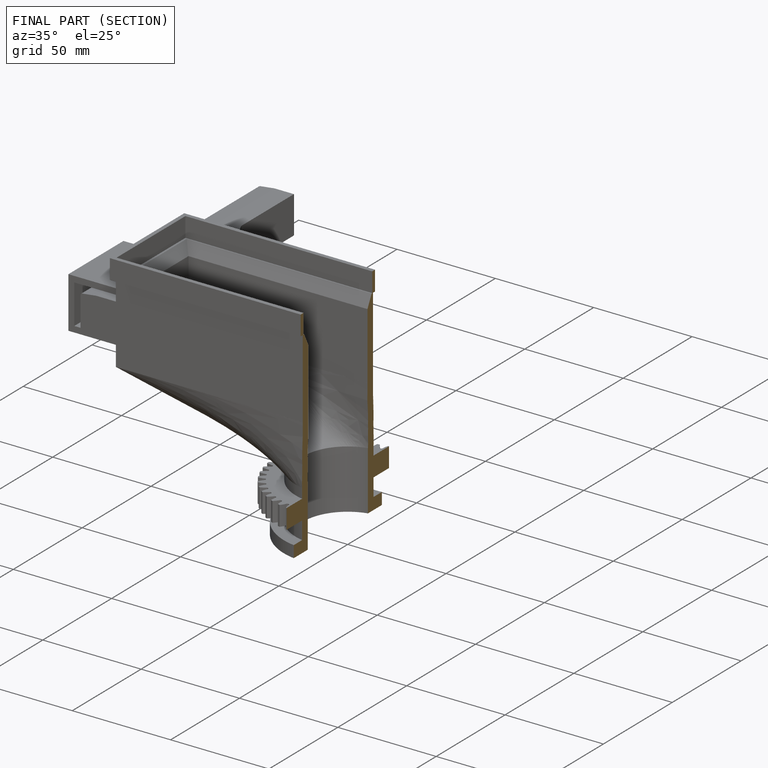
[diagram: finished part — half-section view (interior)]
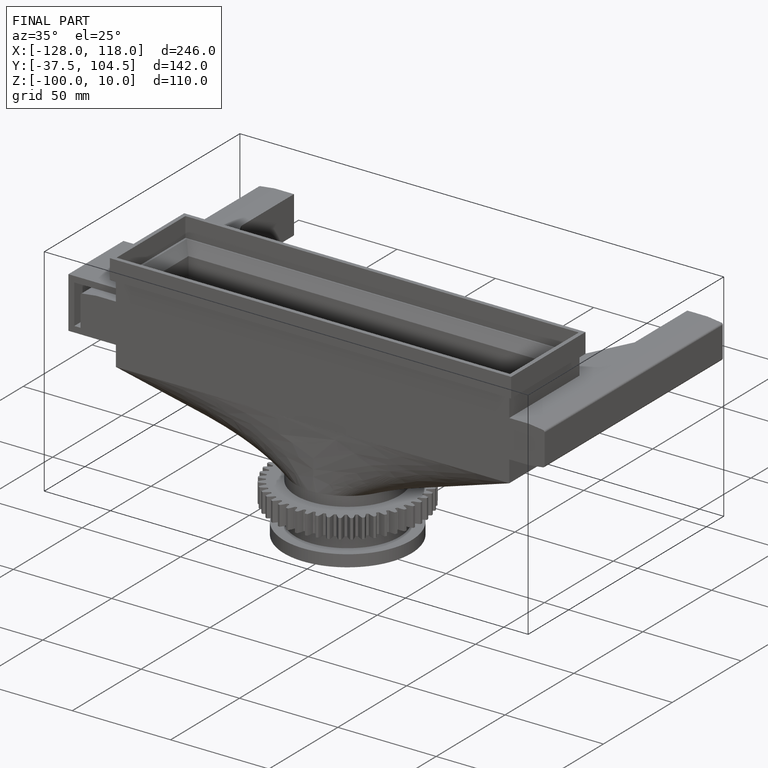
[diagram: finished part — iso view with bounding-box wireframe]
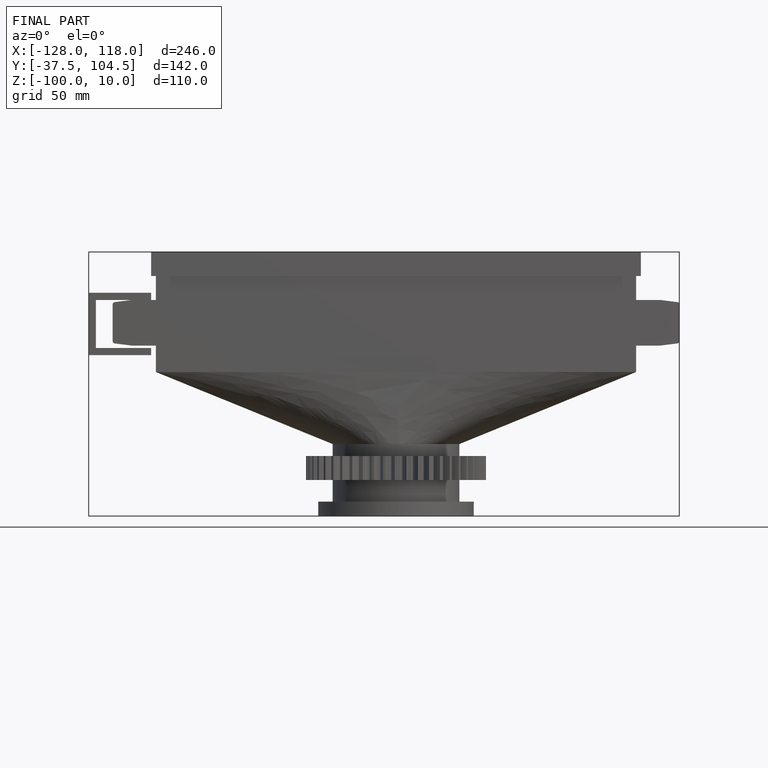
[diagram: finished part — front view with bounding-box wireframe]
